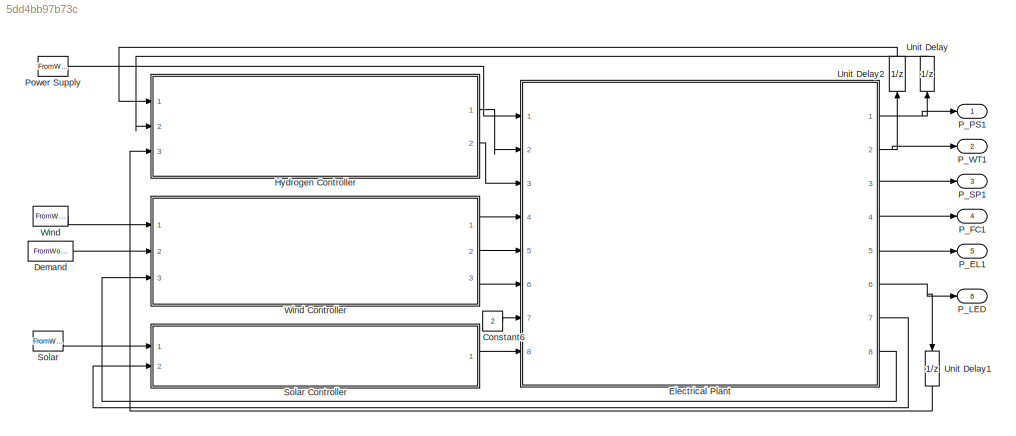
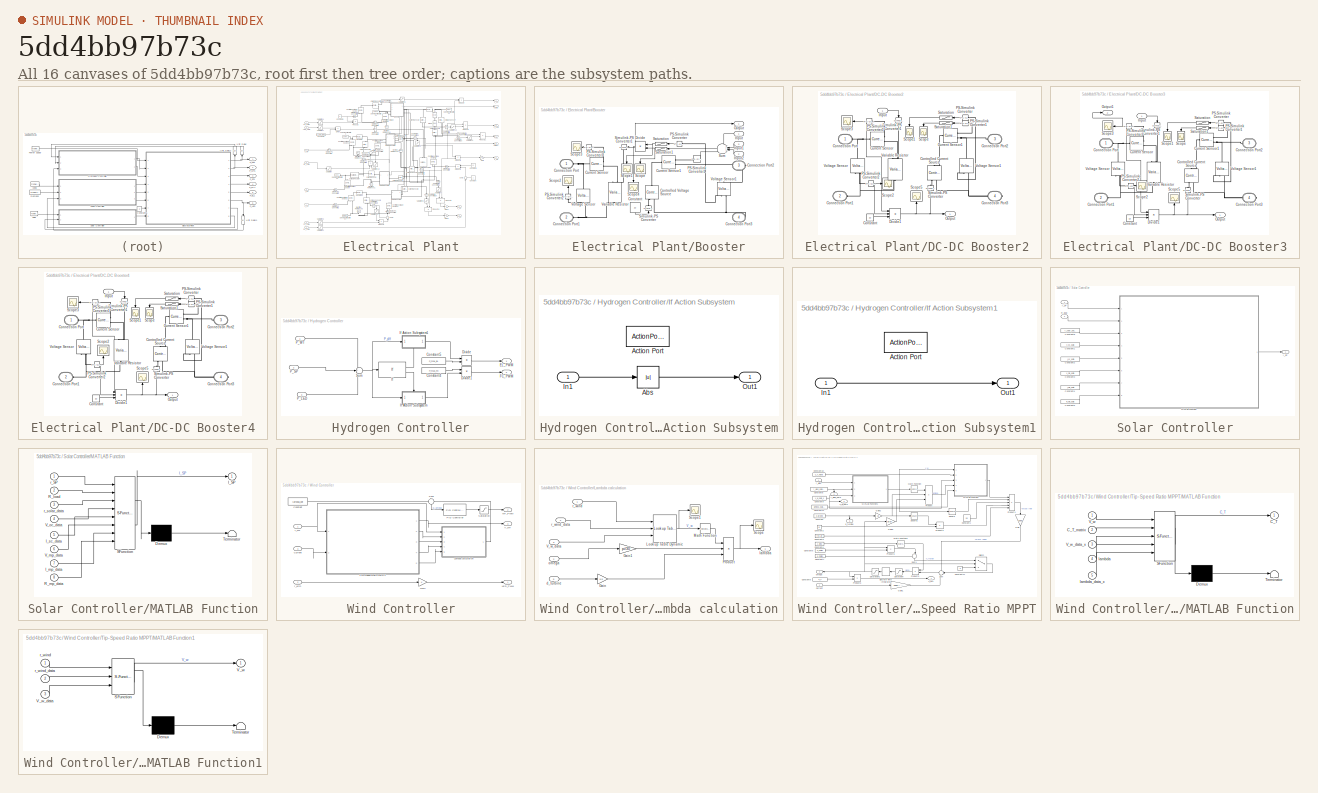
[diagram: thumbnail index - all 16 canvases of the model, root first then tree order]
MODEL slx_5dd4bb97b73c
KIND model
CONFIG AbsTol = auto
CONFIG EnableMultiTasking = off
CONFIG FixedStep = auto
CONFIG MaxStep = 0.0005
CONFIG MinStep = auto
CONFIG RelTol = 1e-3
CONFIG SampleTimeConstraint = Unconstrained
CONFIG Solver = ode23t
CONFIG SolverName = ode23t
CONFIG StartTime = 0.0
CONFIG StopTime = T_sim
BLOCK [Constant] Constant6
  Value = 2
BLOCK [FromWorkspace] Demand
  Interpolate = off
  OutputAfterFinalValue = Holding final value
  SampleTime = T_sim/length(r_LED_x)
  VariableName = r_LED
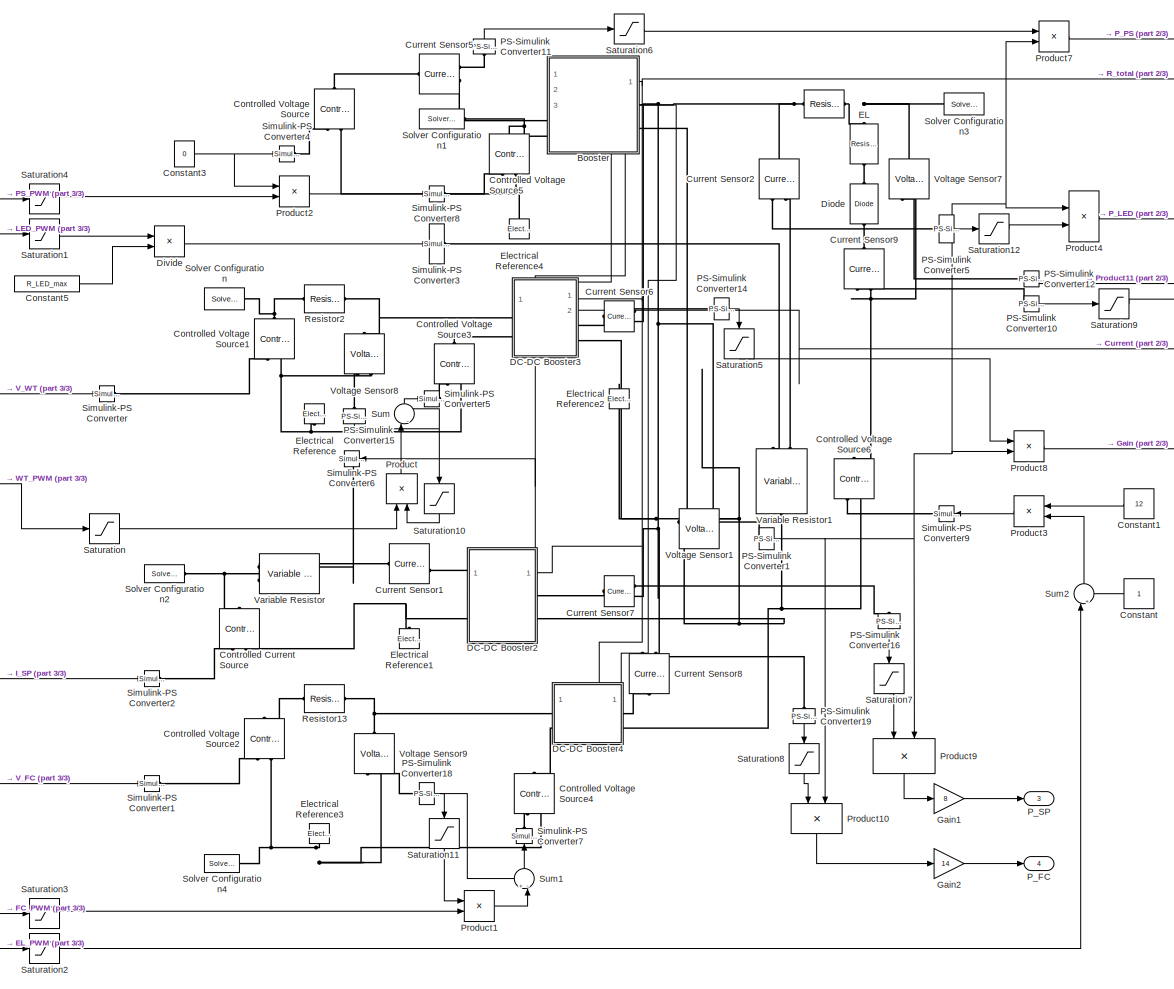
[diagram: Electrical Plant - part 1/3, most of the canvas]
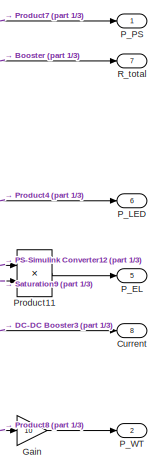
[diagram: Electrical Plant - part 2/3, top right region]
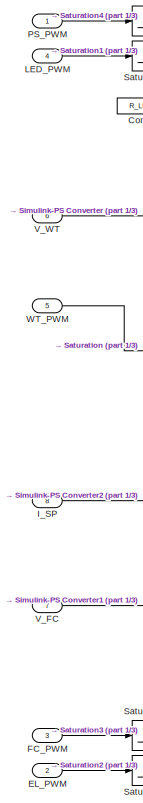
[diagram: Electrical Plant - part 3/3, left side, full height]
BLOCK [SubSystem] Electrical Plant
  Ports = [8, 8]
  RequestExecContextInheritance = off
BLOCK [Reference] Electrical Plant/   REF=fl_lib/Electrical/Electrical Elements/Resistor
  Ports = [0, 0, 0, 0, 0, 1, 1]
  SourceBlock = fl_lib/Electrical/Electrical Elements/Resistor
  SourceProductBaseCode = SS
  SourceType = Resistor
BLOCK [SubSystem] Electrical Plant/Booster
  PortSchema = {"entries":[{"content":{"sides":[{"content":{"connectorIds":["LConn1","LConn2"]},"type":"ConnectorPlacement.EquallySpacedRectSide","uuid":"3f87025d-e72c-4f7c-9c78-5492fcc5bb7b"},{"content":{"connectorIds":["Out1","RConn1","RConn2"],"side":"RIGHT"},"type":"ConnectorPlacement.EquallySpacedRectSide","uuid":"8496db32-d1b8-4ca7-babe-2510a055e486"},{"content":{"connectorIds":[],"side":"TOP"},"type":"Con...<+433ch>
  Ports = [3, 1, 0, 0, 0, 2, 2]
  RequestExecContextInheritance = off
BLOCK [PMIOPort] Electrical Plant/Booster/Connection Port
  Side = Left
  Tag = PMCPort
BLOCK [PMIOPort] Electrical Plant/Booster/Connection Port1
  Port = 2
  Side = Left
  Tag = PMCPort
BLOCK [PMIOPort] Electrical Plant/Booster/Connection Port2
  Port = 3
  Side = Right
  Tag = PMCPort
BLOCK [PMIOPort] Electrical Plant/Booster/Connection Port3
  Port = 4
  Side = Right
  Tag = PMCPort
BLOCK [Constant] Electrical Plant/Booster/Constant
  NameLocation = left
  Value = 12
BLOCK [Reference] Electrical Plant/Booster/Controlled Voltage Source  REF=fl_lib/Electrical/Electrical Sources/Controlled Voltage
Source
  NameLocation = right
  Ports = [0, 0, 0, 0, 0, 1, 2]
  SourceBlock = fl_lib/Electrical/Electrical Sources/Controlled Voltage\nSource
  SourceProductBaseCode = SS
  SourceType = Controlled Voltage\nSource
BLOCK [Reference] Electrical Plant/Booster/Current Sensor  REF=fl_lib/Electrical/Electrical Sensors/Current Sensor
  Ports = [0, 0, 0, 0, 0, 1, 2]
  SourceBlock = fl_lib/Electrical/Electrical Sensors/Current Sensor
  SourceProductBaseCode = SS
  SourceType = Current Sensor
BLOCK [Reference] Electrical Plant/Booster/Current Sensor1  REF=fl_lib/Electrical/Electrical Sensors/Current Sensor
  Ports = [0, 0, 0, 0, 0, 1, 2]
  SourceBlock = fl_lib/Electrical/Electrical Sensors/Current Sensor
  SourceProductBaseCode = SS
  SourceType = Current Sensor
BLOCK [Product] Electrical Plant/Booster/Divide
  Inputs = */
  Ports = [2, 1]
BLOCK [Inport] Electrical Plant/Booster/Input
BLOCK [Inport] Electrical Plant/Booster/Input1
  Port = 3
BLOCK [Inport] Electrical Plant/Booster/Input2
  Port = 2
BLOCK [Outport] Electrical Plant/Booster/Output
BLOCK [Reference] Electrical Plant/Booster/PS-Simulink Converter  REF=nesl_utility/PS-Simulink
Converter
  Ports = [0, 1, 0, 0, 0, 1]
  SourceBlock = nesl_utility/PS-Simulink\nConverter
  SourceProductBaseCode = SS
  SourceType = PS-Simulink\nConverter
BLOCK [Reference] Electrical Plant/Booster/PS-Simulink Converter1  REF=nesl_utility/PS-Simulink
Converter
  Ports = [0, 1, 0, 0, 0, 1]
  SourceBlock = nesl_utility/PS-Simulink\nConverter
  SourceProductBaseCode = SS
  SourceType = PS-Simulink\nConverter
BLOCK [Reference] Electrical Plant/Booster/PS-Simulink Converter2  REF=nesl_utility/PS-Simulink
Converter
  NameLocation = left
  Ports = [0, 1, 0, 0, 0, 1]
  SourceBlock = nesl_utility/PS-Simulink\nConverter
  SourceProductBaseCode = SS
  SourceType = PS-Simulink\nConverter
BLOCK [Reference] Electrical Plant/Booster/PS-Simulink Converter3  REF=nesl_utility/PS-Simulink
Converter
  Ports = [0, 1, 0, 0, 0, 1]
  SourceBlock = nesl_utility/PS-Simulink\nConverter
  SourceProductBaseCode = SS
  SourceType = PS-Simulink\nConverter
BLOCK [Saturate] Electrical Plant/Booster/Saturation
  LowerLimit = 0
  UpperLimit = 13
BLOCK [Saturate] Electrical Plant/Booster/Saturation1
  LowerLimit = 0.01
  UpperLimit = 2
BLOCK [Scope] Electrical Plant/Booster/Scope
  Floating = off
  NameLocation = left
  NumInputPorts = 1
  Ports = [1]
  ScopeSpecificationString = Simulink.scopes.TimeScopeBlockCfg('CurrentConfiguration', extmgr.ConfigurationSet(extmgr.Configuration('Core','General UI',true),extmgr.Configuration('Core','Source UI',true),extmgr.Configuration('Sources','WiredSimulink',true,'DataLoggingVariableName','ScopeData1'),extmgr.Configuration('Visuals','Time Domain',true,'SerializedDisplays',{struct('MinYLimReal','0.3799','MaxYLimReal','0.85627','YLabel...<+1396ch>
BLOCK [Scope] Electrical Plant/Booster/Scope1
  Floating = off
  NameLocation = left
  NumInputPorts = 1
  Ports = [1]
  ScopeSpecificationString = Simulink.scopes.TimeScopeBlockCfg('CurrentConfiguration', extmgr.ConfigurationSet(extmgr.Configuration('Core','General UI',true),extmgr.Configuration('Core','Source UI',true),extmgr.Configuration('Sources','WiredSimulink',true,'DataLoggingVariableName','ScopeData2'),extmgr.Configuration('Visuals','Time Domain',true,'SerializedDisplays',{struct('MinYLimReal','2.00000','MaxYLimReal','22.00000','YLab...<+1404ch>
BLOCK [Scope] Electrical Plant/Booster/Scope2
  Floating = off
  NameLocation = left
  NumInputPorts = 1
  Ports = [1]
  ScopeSpecificationString = Simulink.scopes.TimeScopeBlockCfg('CurrentConfiguration', extmgr.ConfigurationSet(extmgr.Configuration('Core','General UI',true),extmgr.Configuration('Core','Source UI',true),extmgr.Configuration('Sources','WiredSimulink',true,'DataLoggingVariableName','ScopeData3'),extmgr.Configuration('Visuals','Time Domain',true,'SerializedDisplays',{struct('MinYLimReal','72.69692','MaxYLimReal','218.32738','YL...<+1391ch>
BLOCK [Scope] Electrical Plant/Booster/Scope3
  Floating = off
  NumInputPorts = 1
  Ports = [1]
  ScopeSpecificationString = Simulink.scopes.TimeScopeBlockCfg('CurrentConfiguration', extmgr.ConfigurationSet(extmgr.Configuration('Core','General UI',true),extmgr.Configuration('Core','Source UI',true),extmgr.Configuration('Sources','WiredSimulink',true,'DataLoggingVariableName','ScopeData4'),extmgr.Configuration('Visuals','Time Domain',true,'SerializedDisplays',{struct('MinYLimReal','-94026819050944885641864298284086300507...<+2319ch>
BLOCK [Scope] Electrical Plant/Booster/Scope4
  Floating = off
  NameLocation = left
  NumInputPorts = 1
  Ports = [1]
  ScopeSpecificationString = Simulink.scopes.TimeScopeBlockCfg('CurrentConfiguration', extmgr.ConfigurationSet(extmgr.Configuration('Core','General UI',true),extmgr.Configuration('Core','Source UI',true),extmgr.Configuration('Sources','WiredSimulink',true,'DataLoggingVariableName','ScopeData5'),extmgr.Configuration('Visuals','Time Domain',true,'SerializedDisplays',{struct('MinYLimReal','13.18632','MaxYLimReal','29.72149','YLa...<+1700ch>
BLOCK [Reference] Electrical Plant/Booster/Simulink-PS Converter  REF=nesl_utility/Simulink-PS
Converter
  NameLocation = right
  Ports = [1, 0, 0, 0, 0, 0, 1]
  SourceBlock = nesl_utility/Simulink-PS\nConverter
  SourceProductBaseCode = SS
  SourceType = Simulink-PS\nConverter
BLOCK [Reference] Electrical Plant/Booster/Simulink-PS Converter1  REF=nesl_utility/Simulink-PS
Converter
  Ports = [1, 0, 0, 0, 0, 0, 1]
  SourceBlock = nesl_utility/Simulink-PS\nConverter
  SourceProductBaseCode = SS
  SourceType = Simulink-PS\nConverter
BLOCK [Sum] Electrical Plant/Booster/Sum
  Inputs = ++++
  NameLocation = top
  Ports = [4, 1]
BLOCK [Reference] Electrical Plant/Booster/Variable Resistor  REF=fl_lib/Electrical/Electrical Elements/Variable Resistor
  NameLocation = left
  Ports = [0, 0, 0, 0, 0, 2, 1]
  SourceBlock = fl_lib/Electrical/Electrical Elements/Variable Resistor
  SourceProductBaseCode = SS
  SourceType = Variable Resistor
BLOCK [Reference] Electrical Plant/Booster/Voltage Sensor  REF=fl_lib/Electrical/Electrical Sensors/Voltage Sensor
  NameLocation = right
  Ports = [0, 0, 0, 0, 0, 1, 2]
  SourceBlock = fl_lib/Electrical/Electrical Sensors/Voltage Sensor
  SourceProductBaseCode = SS
  SourceType = Voltage Sensor
BLOCK [Reference] Electrical Plant/Booster/Voltage Sensor1  REF=fl_lib/Electrical/Electrical Sensors/Voltage Sensor
  NameLocation = right
  Ports = [0, 0, 0, 0, 0, 1, 2]
  SourceBlock = fl_lib/Electrical/Electrical Sensors/Voltage Sensor
  SourceProductBaseCode = SS
  SourceType = Voltage Sensor
BLOCK [Constant] Electrical Plant/Constant
  NameLocation = top
BLOCK [Constant] Electrical Plant/Constant1
  NameLocation = top
  Value = 12
BLOCK [Constant] Electrical Plant/Constant3
  Value = 0
BLOCK [Constant] Electrical Plant/Constant5
  Value = R_LED_max
BLOCK [Reference] Electrical Plant/Controlled Current Source  REF=fl_lib/Electrical/Electrical Sources/Controlled Current
Source
  NameLocation = right
  Ports = [0, 0, 0, 0, 0, 1, 2]
  SourceBlock = fl_lib/Electrical/Electrical Sources/Controlled Current\nSource
  SourceProductBaseCode = SS
  SourceType = Controlled Current\nSource
BLOCK [Reference] Electrical Plant/Controlled Voltage Source  REF=fl_lib/Electrical/Electrical Sources/Controlled Voltage
Source
  NameLocation = right
  Ports = [0, 0, 0, 0, 0, 1, 2]
  SourceBlock = fl_lib/Electrical/Electrical Sources/Controlled Voltage\nSource
  SourceProductBaseCode = SS
  SourceType = Controlled Voltage\nSource
BLOCK [Reference] Electrical Plant/Controlled Voltage Source1  REF=fl_lib/Electrical/Electrical Sources/Controlled Voltage
Source
  NameLocation = right
  Ports = [0, 0, 0, 0, 0, 1, 2]
  SourceBlock = fl_lib/Electrical/Electrical Sources/Controlled Voltage\nSource
  SourceProductBaseCode = SS
  SourceType = Controlled Voltage\nSource
BLOCK [Reference] Electrical Plant/Controlled Voltage Source2  REF=fl_lib/Electrical/Electrical Sources/Controlled Voltage
Source
  NameLocation = right
  Ports = [0, 0, 0, 0, 0, 1, 2]
  SourceBlock = fl_lib/Electrical/Electrical Sources/Controlled Voltage\nSource
  SourceProductBaseCode = SS
  SourceType = Controlled Voltage\nSource
BLOCK [Reference] Electrical Plant/Controlled Voltage Source3  REF=fl_lib/Electrical/Electrical Sources/Controlled Voltage
Source
  NameLocation = right
  Ports = [0, 0, 0, 0, 0, 1, 2]
  SourceBlock = fl_lib/Electrical/Electrical Sources/Controlled Voltage\nSource
  SourceProductBaseCode = SS
  SourceType = Controlled Voltage\nSource
BLOCK [Reference] Electrical Plant/Controlled Voltage Source4  REF=fl_lib/Electrical/Electrical Sources/Controlled Voltage
Source
  NameLocation = right
  Ports = [0, 0, 0, 0, 0, 1, 2]
  SourceBlock = fl_lib/Electrical/Electrical Sources/Controlled Voltage\nSource
  SourceProductBaseCode = SS
  SourceType = Controlled Voltage\nSource
BLOCK [Reference] Electrical Plant/Controlled Voltage Source5  REF=fl_lib/Electrical/Electrical Sources/Controlled Voltage
Source
  NameLocation = right
  Ports = [0, 0, 0, 0, 0, 1, 2]
  SourceBlock = fl_lib/Electrical/Electrical Sources/Controlled Voltage\nSource
  SourceProductBaseCode = SS
  SourceType = Controlled Voltage\nSource
BLOCK [Reference] Electrical Plant/Controlled Voltage Source6  REF=fl_lib/Electrical/Electrical Sources/Controlled Voltage
Source
  NameLocation = right
  Ports = [0, 0, 0, 0, 0, 1, 2]
  SourceBlock = fl_lib/Electrical/Electrical Sources/Controlled Voltage\nSource
  SourceProductBaseCode = SS
  SourceType = Controlled Voltage\nSource
BLOCK [Outport] Electrical Plant/Current
  Port = 8
BLOCK [Reference] Electrical Plant/Current Sensor1  REF=fl_lib/Electrical/Electrical Sensors/Current Sensor
  Ports = [0, 0, 0, 0, 0, 1, 2]
  SourceBlock = fl_lib/Electrical/Electrical Sensors/Current Sensor
  SourceProductBaseCode = SS
  SourceType = Current Sensor
BLOCK [Reference] Electrical Plant/Current Sensor2  REF=fl_lib/Electrical/Electrical Sensors/Current Sensor
  NameLocation = left
  Ports = [0, 0, 0, 0, 0, 1, 2]
  SourceBlock = fl_lib/Electrical/Electrical Sensors/Current Sensor
  SourceProductBaseCode = SS
  SourceType = Current Sensor
BLOCK [Reference] Electrical Plant/Current Sensor5  REF=fl_lib/Electrical/Electrical Sensors/Current Sensor
  Ports = [0, 0, 0, 0, 0, 1, 2]
  SourceBlock = fl_lib/Electrical/Electrical Sensors/Current Sensor
  SourceProductBaseCode = SS
  SourceType = Current Sensor
BLOCK [Reference] Electrical Plant/Current Sensor6  REF=fl_lib/Electrical/Electrical Sensors/Current Sensor
  Ports = [0, 0, 0, 0, 0, 1, 2]
  SourceBlock = fl_lib/Electrical/Electrical Sensors/Current Sensor
  SourceProductBaseCode = SS
  SourceType = Current Sensor
BLOCK [Reference] Electrical Plant/Current Sensor7  REF=fl_lib/Electrical/Electrical Sensors/Current Sensor
  Ports = [0, 0, 0, 0, 0, 1, 2]
  SourceBlock = fl_lib/Electrical/Electrical Sensors/Current Sensor
  SourceProductBaseCode = SS
  SourceType = Current Sensor
BLOCK [Reference] Electrical Plant/Current Sensor8  REF=fl_lib/Electrical/Electrical Sensors/Current Sensor
  NameLocation = right
  Ports = [0, 0, 0, 0, 0, 1, 2]
  SourceBlock = fl_lib/Electrical/Electrical Sensors/Current Sensor
  SourceProductBaseCode = SS
  SourceType = Current Sensor
BLOCK [Reference] Electrical Plant/Current Sensor9  REF=fl_lib/Electrical/Electrical Sensors/Current Sensor
  NameLocation = left
  Ports = [0, 0, 0, 0, 0, 1, 2]
  SourceBlock = fl_lib/Electrical/Electrical Sensors/Current Sensor
  SourceProductBaseCode = SS
  SourceType = Current Sensor
BLOCK [SubSystem] Electrical Plant/DC-DC Booster2
  PortSchema = {"entries":[{"content":{"sides":[{"content":{"connectorIds":["LConn1","LConn2"]},"type":"ConnectorPlacement.EquallySpacedRectSide","uuid":"e779e15f-05fe-47ae-aa08-5379ba170b98"},{"content":{"connectorIds":["In1","RConn1","RConn2"],"side":"RIGHT"},"type":"ConnectorPlacement.EquallySpacedRectSide","uuid":"c806a98b-8847-4c98-ba30-df3a6a47e20e"},{"content":{"connectorIds":["Out1"],"side":"TOP"},"type"...<+277ch>
  Ports = [1, 1, 0, 0, 0, 2, 2]
  RequestExecContextInheritance = off
BLOCK [PMIOPort] Electrical Plant/DC-DC Booster2/Connection Port
  Side = Left
  Tag = PMCPort
BLOCK [PMIOPort] Electrical Plant/DC-DC Booster2/Connection Port1
  Port = 2
  Side = Left
  Tag = PMCPort
BLOCK [PMIOPort] Electrical Plant/DC-DC Booster2/Connection Port2
  Port = 3
  Side = Right
  Tag = PMCPort
BLOCK [PMIOPort] Electrical Plant/DC-DC Booster2/Connection Port3
  Port = 4
  Side = Right
  Tag = PMCPort
BLOCK [Constant] Electrical Plant/DC-DC Booster2/Constant
  Value = 12
BLOCK [Reference] Electrical Plant/DC-DC Booster2/Controlled Current Source  REF=fl_lib/Electrical/Electrical Sources/Controlled Current
Source
  NameLocation = right
  Ports = [0, 0, 0, 0, 0, 1, 2]
  SourceBlock = fl_lib/Electrical/Electrical Sources/Controlled Current\nSource
  SourceProductBaseCode = SS
  SourceType = Controlled Current\nSource
BLOCK [Reference] Electrical Plant/DC-DC Booster2/Current Sensor  REF=fl_lib/Electrical/Electrical Sensors/Current Sensor
  Ports = [0, 0, 0, 0, 0, 1, 2]
  SourceBlock = fl_lib/Electrical/Electrical Sensors/Current Sensor
  SourceProductBaseCode = SS
  SourceType = Current Sensor
BLOCK [Reference] Electrical Plant/DC-DC Booster2/Current Sensor1  REF=fl_lib/Electrical/Electrical Sensors/Current Sensor
  Ports = [0, 0, 0, 0, 0, 1, 2]
  SourceBlock = fl_lib/Electrical/Electrical Sensors/Current Sensor
  SourceProductBaseCode = SS
  SourceType = Current Sensor
BLOCK [Product] Electrical Plant/DC-DC Booster2/Divide1
  Inputs = **/
  Ports = [3, 1]
BLOCK [Inport] Electrical Plant/DC-DC Booster2/Input
BLOCK [Outport] Electrical Plant/DC-DC Booster2/Output
BLOCK [Reference] Electrical Plant/DC-DC Booster2/PS-Simulink Converter  REF=nesl_utility/PS-Simulink
Converter
  Ports = [0, 1, 0, 0, 0, 1]
  SourceBlock = nesl_utility/PS-Simulink\nConverter
  SourceProductBaseCode = SS
  SourceType = PS-Simulink\nConverter
BLOCK [Reference] Electrical Plant/DC-DC Booster2/PS-Simulink Converter1  REF=nesl_utility/PS-Simulink
Converter
  Ports = [0, 1, 0, 0, 0, 1]
  SourceBlock = nesl_utility/PS-Simulink\nConverter
  SourceProductBaseCode = SS
  SourceType = PS-Simulink\nConverter
BLOCK [Reference] Electrical Plant/DC-DC Booster2/PS-Simulink Converter2  REF=nesl_utility/PS-Simulink
Converter
  Ports = [0, 1, 0, 0, 0, 1]
  SourceBlock = nesl_utility/PS-Simulink\nConverter
  SourceProductBaseCode = SS
  SourceType = PS-Simulink\nConverter
BLOCK [Reference] Electrical Plant/DC-DC Booster2/PS-Simulink Converter3  REF=nesl_utility/PS-Simulink
Converter
  Ports = [0, 1, 0, 0, 0, 1]
  SourceBlock = nesl_utility/PS-Simulink\nConverter
  SourceProductBaseCode = SS
  SourceType = PS-Simulink\nConverter
BLOCK [Saturate] Electrical Plant/DC-DC Booster2/Saturation
  LowerLimit = 0
  UpperLimit = 13
BLOCK [Saturate] Electrical Plant/DC-DC Booster2/Saturation1
  LowerLimit = 0
  UpperLimit = 2
BLOCK [Scope] Electrical Plant/DC-DC Booster2/Scope
  Floating = off
  NameLocation = left
  NumInputPorts = 1
  Ports = [1]
  ScopeSpecificationString = Simulink.scopes.TimeScopeBlockCfg('CurrentConfiguration', extmgr.ConfigurationSet(extmgr.Configuration('Core','General UI',true),extmgr.Configuration('Core','Source UI',true),extmgr.Configuration('Sources','WiredSimulink',true,'DataLoggingVariableName','ScopeData1'),extmgr.Configuration('Visuals','Time Domain',true,'SerializedDisplays',{struct('MinYLimReal','-0.00012','MaxYLimReal','0.0011','YLabe...<+1366ch>
BLOCK [Scope] Electrical Plant/DC-DC Booster2/Scope1
  Floating = off
  NameLocation = left
  NumInputPorts = 1
  Ports = [1]
  ScopeSpecificationString = Simulink.scopes.TimeScopeBlockCfg('CurrentConfiguration', extmgr.ConfigurationSet(extmgr.Configuration('Core','General UI',true),extmgr.Configuration('Core','Source UI',true),extmgr.Configuration('Sources','WiredSimulink',true,'DataLoggingVariableName','ScopeData2'),extmgr.Configuration('Visuals','Time Domain',true,'SerializedDisplays',{struct('MinYLimReal','2.00000','MaxYLimReal','22.00000','YLab...<+1400ch>  <repeated x3 — deduplicated; at blocks: Scope1>
BLOCK [Scope] Electrical Plant/DC-DC Booster2/Scope2
  Floating = off
  NumInputPorts = 1
  Ports = [1]
  ScopeSpecificationString = Simulink.scopes.TimeScopeBlockCfg('CurrentConfiguration', extmgr.ConfigurationSet(extmgr.Configuration('Core','General UI',true),extmgr.Configuration('Core','Source UI',true),extmgr.Configuration('Sources','WiredSimulink',true,'DataLoggingVariableName','ScopeData3'),extmgr.Configuration('Visuals','Time Domain',true,'SerializedDisplays',{struct('MinYLimReal','-0.07095','MaxYLimReal','0.63854','YLab...<+1381ch>
BLOCK [Scope] Electrical Plant/DC-DC Booster2/Scope3
  Floating = off
  NumInputPorts = 1
  Ports = [1]
  ScopeSpecificationString = Simulink.scopes.TimeScopeBlockCfg('CurrentConfiguration', extmgr.ConfigurationSet(extmgr.Configuration('Core','General UI',true),extmgr.Configuration('Core','Source UI',true),extmgr.Configuration('Sources','WiredSimulink',true,'DataLoggingVariableName','ScopeData4'),extmgr.Configuration('Visuals','Time Domain',true,'SerializedDisplays',{struct('MinYLimReal','-0.00258','MaxYLimReal','0.0232','YLabe...<+1377ch>
BLOCK [Scope] Electrical Plant/DC-DC Booster2/Scope5
  Floating = off
  NameLocation = right
  NumInputPorts = 1
  Ports = [1]
  ScopeSpecificationString = Simulink.scopes.TimeScopeBlockCfg('CurrentConfiguration', extmgr.ConfigurationSet(extmgr.Configuration('Core','General UI',true),extmgr.Configuration('Core','Source UI',true),extmgr.Configuration('Sources','WiredSimulink',true,'DataLoggingVariableName','ScopeData2'),extmgr.Configuration('Visuals','Time Domain',true,'SerializedDisplays',{struct('MinYLimReal','-0.00012','MaxYLimReal','0.0011','YLabe...<+1362ch>
BLOCK [Reference] Electrical Plant/DC-DC Booster2/Simulink-PS Converter  REF=nesl_utility/Simulink-PS
Converter
  NameLocation = right
  Ports = [1, 0, 0, 0, 0, 0, 1]
  SourceBlock = nesl_utility/Simulink-PS\nConverter
  SourceProductBaseCode = SS
  SourceType = Simulink-PS\nConverter
BLOCK [Reference] Electrical Plant/DC-DC Booster2/Simulink-PS Converter1  REF=nesl_utility/Simulink-PS
Converter
  NameLocation = right
  Ports = [1, 0, 0, 0, 0, 0, 1]
  SourceBlock = nesl_utility/Simulink-PS\nConverter
  SourceProductBaseCode = SS
  SourceType = Simulink-PS\nConverter
BLOCK [Reference] Electrical Plant/DC-DC Booster2/Variable Resistor  REF=fl_lib/Electrical/Electrical Elements/Variable Resistor
  NameLocation = left
  Ports = [0, 0, 0, 0, 0, 2, 1]
  SourceBlock = fl_lib/Electrical/Electrical Elements/Variable Resistor
  SourceProductBaseCode = SS
  SourceType = Variable Resistor
BLOCK [Reference] Electrical Plant/DC-DC Booster2/Voltage Sensor  REF=fl_lib/Electrical/Electrical Sensors/Voltage Sensor
  NameLocation = right
  Ports = [0, 0, 0, 0, 0, 1, 2]
  SourceBlock = fl_lib/Electrical/Electrical Sensors/Voltage Sensor
  SourceProductBaseCode = SS
  SourceType = Voltage Sensor
BLOCK [Reference] Electrical Plant/DC-DC Booster2/Voltage Sensor1  REF=fl_lib/Electrical/Electrical Sensors/Voltage Sensor
  NameLocation = right
  Ports = [0, 0, 0, 0, 0, 1, 2]
  SourceBlock = fl_lib/Electrical/Electrical Sensors/Voltage Sensor
  SourceProductBaseCode = SS
  SourceType = Voltage Sensor
BLOCK [SubSystem] Electrical Plant/DC-DC Booster3
  PortSchema = {"entries":[{"content":{"sides":[{"content":{"connectorIds":["LConn1","LConn2"]},"type":"ConnectorPlacement.EquallySpacedRectSide","uuid":"e779e15f-05fe-47ae-aa08-5379ba170b98"},{"content":{"connectorIds":["In1","RConn1","RConn2"],"side":"RIGHT"},"type":"ConnectorPlacement.EquallySpacedRectSide","uuid":"c806a98b-8847-4c98-ba30-df3a6a47e20e"},{"content":{"connectorIds":["Out1","Out2"],"side":"TOP"}...<+284ch>
  Ports = [1, 2, 0, 0, 0, 2, 2]
  RequestExecContextInheritance = off
BLOCK [PMIOPort] Electrical Plant/DC-DC Booster3/Connection Port
  Side = Left
  Tag = PMCPort
BLOCK [PMIOPort] Electrical Plant/DC-DC Booster3/Connection Port1
  Port = 2
  Side = Left
  Tag = PMCPort
BLOCK [PMIOPort] Electrical Plant/DC-DC Booster3/Connection Port2
  Port = 3
  Side = Right
  Tag = PMCPort
BLOCK [PMIOPort] Electrical Plant/DC-DC Booster3/Connection Port3
  Port = 4
  Side = Right
  Tag = PMCPort
BLOCK [Constant] Electrical Plant/DC-DC Booster3/Constant
  Value = 12
BLOCK [Reference] Electrical Plant/DC-DC Booster3/Controlled Current Source  REF=fl_lib/Electrical/Electrical Sources/Controlled Current
Source
  NameLocation = right
  Ports = [0, 0, 0, 0, 0, 1, 2]
  SourceBlock = fl_lib/Electrical/Electrical Sources/Controlled Current\nSource
  SourceProductBaseCode = SS
  SourceType = Controlled Current\nSource
BLOCK [Reference] Electrical Plant/DC-DC Booster3/Current Sensor  REF=fl_lib/Electrical/Electrical Sensors/Current Sensor
  Ports = [0, 0, 0, 0, 0, 1, 2]
  SourceBlock = fl_lib/Electrical/Electrical Sensors/Current Sensor
  SourceProductBaseCode = SS
  SourceType = Current Sensor
BLOCK [Reference] Electrical Plant/DC-DC Booster3/Current Sensor1  REF=fl_lib/Electrical/Electrical Sensors/Current Sensor
  Ports = [0, 0, 0, 0, 0, 1, 2]
  SourceBlock = fl_lib/Electrical/Electrical Sensors/Current Sensor
  SourceProductBaseCode = SS
  SourceType = Current Sensor
BLOCK [Product] Electrical Plant/DC-DC Booster3/Divide1
  Inputs = **/
  Ports = [3, 1]
BLOCK [Inport] Electrical Plant/DC-DC Booster3/Input
BLOCK [Outport] Electrical Plant/DC-DC Booster3/Output
BLOCK [Outport] Electrical Plant/DC-DC Booster3/Output1
  Port = 2
BLOCK [Reference] Electrical Plant/DC-DC Booster3/PS-Simulink Converter  REF=nesl_utility/PS-Simulink
Converter
  Ports = [0, 1, 0, 0, 0, 1]
  SourceBlock = nesl_utility/PS-Simulink\nConverter
  SourceProductBaseCode = SS
  SourceType = PS-Simulink\nConverter
BLOCK [Reference] Electrical Plant/DC-DC Booster3/PS-Simulink Converter1  REF=nesl_utility/PS-Simulink
Converter
  Ports = [0, 1, 0, 0, 0, 1]
  SourceBlock = nesl_utility/PS-Simulink\nConverter
  SourceProductBaseCode = SS
  SourceType = PS-Simulink\nConverter
BLOCK [Reference] Electrical Plant/DC-DC Booster3/PS-Simulink Converter2  REF=nesl_utility/PS-Simulink
Converter
  Ports = [0, 1, 0, 0, 0, 1]
  SourceBlock = nesl_utility/PS-Simulink\nConverter
  SourceProductBaseCode = SS
  SourceType = PS-Simulink\nConverter
BLOCK [Reference] Electrical Plant/DC-DC Booster3/PS-Simulink Converter3  REF=nesl_utility/PS-Simulink
Converter
  Ports = [0, 1, 0, 0, 0, 1]
  SourceBlock = nesl_utility/PS-Simulink\nConverter
  SourceProductBaseCode = SS
  SourceType = PS-Simulink\nConverter
BLOCK [Saturate] Electrical Plant/DC-DC Booster3/Saturation
  LowerLimit = 0
  UpperLimit = 13
BLOCK [Saturate] Electrical Plant/DC-DC Booster3/Saturation1
  LowerLimit = 0
  UpperLimit = 2
BLOCK [Scope] Electrical Plant/DC-DC Booster3/Scope
  Floating = off
  NameLocation = left
  NumInputPorts = 1
  Ports = [1]
  ScopeSpecificationString = Simulink.scopes.TimeScopeBlockCfg('CurrentConfiguration', extmgr.ConfigurationSet(extmgr.Configuration('Core','General UI',true),extmgr.Configuration('Core','Source UI',true),extmgr.Configuration('Sources','WiredSimulink',true,'DataLoggingVariableName','ScopeData1'),extmgr.Configuration('Visuals','Time Domain',true,'SerializedDisplays',{struct('MinYLimReal','0.29013','MaxYLimReal','2.18999','YLabe...<+1368ch>
BLOCK [Scope] Electrical Plant/DC-DC Booster3/Scope1
  Floating = off
  NameLocation = left
  NumInputPorts = 1
  Ports = [1]
BLOCK [Scope] Electrical Plant/DC-DC Booster3/Scope2
  Floating = off
  NumInputPorts = 1
  Ports = [1]
  ScopeSpecificationString = Simulink.scopes.TimeScopeBlockCfg('CurrentConfiguration', extmgr.ConfigurationSet(extmgr.Configuration('Core','General UI',true),extmgr.Configuration('Core','Source UI',true),extmgr.Configuration('Sources','WiredSimulink',true,'DataLoggingVariableName','ScopeData3'),extmgr.Configuration('Visuals','Time Domain',true,'SerializedDisplays',{struct('MinYLimReal','-0.60293','MaxYLimReal','5.42638','YLab...<+1436ch>
BLOCK [Scope] Electrical Plant/DC-DC Booster3/Scope3
  Floating = off
  NumInputPorts = 1
  Ports = [1]
  ScopeSpecificationString = Simulink.scopes.TimeScopeBlockCfg('CurrentConfiguration', extmgr.ConfigurationSet(extmgr.Configuration('Core','General UI',true),extmgr.Configuration('Core','Source UI',true),extmgr.Configuration('Sources','WiredSimulink',true,'DataLoggingVariableName','ScopeData4'),extmgr.Configuration('Visuals','Time Domain',true,'SerializedDisplays',{struct('MinYLimReal','-0.03666','MaxYLimReal','0.33859','YLab...<+1381ch>
BLOCK [Scope] Electrical Plant/DC-DC Booster3/Scope5
  Floating = off
  NameLocation = right
  NumInputPorts = 1
  Ports = [1]
  ScopeSpecificationString = Simulink.scopes.TimeScopeBlockCfg('CurrentConfiguration', extmgr.ConfigurationSet(extmgr.Configuration('Core','General UI',true),extmgr.Configuration('Core','Source UI',true),extmgr.Configuration('Sources','WiredSimulink',true,'DataLoggingVariableName','ScopeData2'),extmgr.Configuration('Visuals','Time Domain',true,'SerializedDisplays',{struct('MinYLimReal','-0.00719','MaxYLimReal','0.06475','YLab...<+1366ch>
BLOCK [Reference] Electrical Plant/DC-DC Booster3/Simulink-PS Converter  REF=nesl_utility/Simulink-PS
Converter
  NameLocation = right
  Ports = [1, 0, 0, 0, 0, 0, 1]
  SourceBlock = nesl_utility/Simulink-PS\nConverter
  SourceProductBaseCode = SS
  SourceType = Simulink-PS\nConverter
BLOCK [Reference] Electrical Plant/DC-DC Booster3/Simulink-PS Converter1  REF=nesl_utility/Simulink-PS
Converter
  NameLocation = right
  Ports = [1, 0, 0, 0, 0, 0, 1]
  SourceBlock = nesl_utility/Simulink-PS\nConverter
  SourceProductBaseCode = SS
  SourceType = Simulink-PS\nConverter
BLOCK [Reference] Electrical Plant/DC-DC Booster3/Variable Resistor  REF=fl_lib/Electrical/Electrical Elements/Variable Resistor
  NameLocation = left
  Ports = [0, 0, 0, 0, 0, 2, 1]
  SourceBlock = fl_lib/Electrical/Electrical Elements/Variable Resistor
  SourceProductBaseCode = SS
  SourceType = Variable Resistor
BLOCK [Reference] Electrical Plant/DC-DC Booster3/Voltage Sensor  REF=fl_lib/Electrical/Electrical Sensors/Voltage Sensor
  NameLocation = right
  Ports = [0, 0, 0, 0, 0, 1, 2]
  SourceBlock = fl_lib/Electrical/Electrical Sensors/Voltage Sensor
  SourceProductBaseCode = SS
  SourceType = Voltage Sensor
BLOCK [Reference] Electrical Plant/DC-DC Booster3/Voltage Sensor1  REF=fl_lib/Electrical/Electrical Sensors/Voltage Sensor
  NameLocation = right
  Ports = [0, 0, 0, 0, 0, 1, 2]
  SourceBlock = fl_lib/Electrical/Electrical Sensors/Voltage Sensor
  SourceProductBaseCode = SS
  SourceType = Voltage Sensor
BLOCK [SubSystem] Electrical Plant/DC-DC Booster4
  PortSchema = {"entries":[{"content":{"sides":[{"content":{"connectorIds":["LConn1","LConn2"]},"type":"ConnectorPlacement.EquallySpacedRectSide","uuid":"53e27ef1-b6e4-4838-a313-2833a9f48f28"},{"content":{"connectorIds":["RConn1","RConn2"],"side":"RIGHT"},"type":"ConnectorPlacement.EquallySpacedRectSide","uuid":"d6eb4206-926e-4a9e-8f3b-898e00b2f09a"},{"content":{"connectorIds":["Out1","In1"],"side":"TOP"},"type"...<+277ch>
  Ports = [1, 1, 0, 0, 0, 2, 2]
  RequestExecContextInheritance = off
BLOCK [PMIOPort] Electrical Plant/DC-DC Booster4/Connection Port
  Side = Left
  Tag = PMCPort
BLOCK [PMIOPort] Electrical Plant/DC-DC Booster4/Connection Port1
  Port = 2
  Side = Left
  Tag = PMCPort
BLOCK [PMIOPort] Electrical Plant/DC-DC Booster4/Connection Port2
  Port = 3
  Side = Right
  Tag = PMCPort
BLOCK [PMIOPort] Electrical Plant/DC-DC Booster4/Connection Port3
  Port = 4
  Side = Right
  Tag = PMCPort
BLOCK [Constant] Electrical Plant/DC-DC Booster4/Constant
  Value = 12
BLOCK [Reference] Electrical Plant/DC-DC Booster4/Controlled Current Source  REF=fl_lib/Electrical/Electrical Sources/Controlled Current
Source
  NameLocation = right
  Ports = [0, 0, 0, 0, 0, 1, 2]
  SourceBlock = fl_lib/Electrical/Electrical Sources/Controlled Current\nSource
  SourceProductBaseCode = SS
  SourceType = Controlled Current\nSource
BLOCK [Reference] Electrical Plant/DC-DC Booster4/Current Sensor  REF=fl_lib/Electrical/Electrical Sensors/Current Sensor
  Ports = [0, 0, 0, 0, 0, 1, 2]
  SourceBlock = fl_lib/Electrical/Electrical Sensors/Current Sensor
  SourceProductBaseCode = SS
  SourceType = Current Sensor
BLOCK [Reference] Electrical Plant/DC-DC Booster4/Current Sensor1  REF=fl_lib/Electrical/Electrical Sensors/Current Sensor
  Ports = [0, 0, 0, 0, 0, 1, 2]
  SourceBlock = fl_lib/Electrical/Electrical Sensors/Current Sensor
  SourceProductBaseCode = SS
  SourceType = Current Sensor
BLOCK [Product] Electrical Plant/DC-DC Booster4/Divide1
  Inputs = **/
  Ports = [3, 1]
BLOCK [Inport] Electrical Plant/DC-DC Booster4/Input
BLOCK [Outport] Electrical Plant/DC-DC Booster4/Output
BLOCK [Reference] Electrical Plant/DC-DC Booster4/PS-Simulink Converter  REF=nesl_utility/PS-Simulink
Converter
  Ports = [0, 1, 0, 0, 0, 1]
  SourceBlock = nesl_utility/PS-Simulink\nConverter
  SourceProductBaseCode = SS
  SourceType = PS-Simulink\nConverter
BLOCK [Reference] Electrical Plant/DC-DC Booster4/PS-Simulink Converter1  REF=nesl_utility/PS-Simulink
Converter
  Ports = [0, 1, 0, 0, 0, 1]
  SourceBlock = nesl_utility/PS-Simulink\nConverter
  SourceProductBaseCode = SS
  SourceType = PS-Simulink\nConverter
BLOCK [Reference] Electrical Plant/DC-DC Booster4/PS-Simulink Converter2  REF=nesl_utility/PS-Simulink
Converter
  Ports = [0, 1, 0, 0, 0, 1]
  SourceBlock = nesl_utility/PS-Simulink\nConverter
  SourceProductBaseCode = SS
  SourceType = PS-Simulink\nConverter
BLOCK [Reference] Electrical Plant/DC-DC Booster4/PS-Simulink Converter3  REF=nesl_utility/PS-Simulink
Converter
  Ports = [0, 1, 0, 0, 0, 1]
  SourceBlock = nesl_utility/PS-Simulink\nConverter
  SourceProductBaseCode = SS
  SourceType = PS-Simulink\nConverter
BLOCK [Saturate] Electrical Plant/DC-DC Booster4/Saturation
  LowerLimit = 0
  UpperLimit = 13
BLOCK [Saturate] Electrical Plant/DC-DC Booster4/Saturation1
  LowerLimit = 0
  UpperLimit = 2
BLOCK [Scope] Electrical Plant/DC-DC Booster4/Scope
  Floating = off
  NameLocation = left
  NumInputPorts = 1
  Ports = [1]
  ScopeSpecificationString = Simulink.scopes.TimeScopeBlockCfg('CurrentConfiguration', extmgr.ConfigurationSet(extmgr.Configuration('Core','General UI',true),extmgr.Configuration('Core','Source UI',true),extmgr.Configuration('Sources','WiredSimulink',true,'DataLoggingVariableName','ScopeData1'),extmgr.Configuration('Visuals','Time Domain',true,'SerializedDisplays',{struct('MinYLimReal','0.29013','MaxYLimReal','2.18999','YLabe...<+1368ch>
BLOCK [Scope] Electrical Plant/DC-DC Booster4/Scope1
  Floating = off
  NameLocation = left
  NumInputPorts = 1
  Ports = [1]
BLOCK [Scope] Electrical Plant/DC-DC Booster4/Scope2
  Floating = off
  NameLocation = right
  NumInputPorts = 1
  Ports = [1]
  ScopeSpecificationString = Simulink.scopes.TimeScopeBlockCfg('CurrentConfiguration', extmgr.ConfigurationSet(extmgr.Configuration('Core','General UI',true),extmgr.Configuration('Core','Source UI',true),extmgr.Configuration('Sources','WiredSimulink',true,'DataLoggingVariableName','ScopeData3'),extmgr.Configuration('Visuals','Time Domain',true,'SerializedDisplays',{struct('MinYLimReal','-0.06663','MaxYLimReal','0.56696','YLab...<+1381ch>
BLOCK [Scope] Electrical Plant/DC-DC Booster4/Scope3
  Floating = off
  NumInputPorts = 1
  Ports = [1]
  ScopeSpecificationString = Simulink.scopes.TimeScopeBlockCfg('CurrentConfiguration', extmgr.ConfigurationSet(extmgr.Configuration('Core','General UI',true),extmgr.Configuration('Core','Source UI',true),extmgr.Configuration('Sources','WiredSimulink',true,'DataLoggingVariableName','ScopeData4'),extmgr.Configuration('Visuals','Time Domain',true,'SerializedDisplays',{struct('MinYLimReal','-0.00453','MaxYLimReal','0.03529','YLab...<+1680ch>
BLOCK [Scope] Electrical Plant/DC-DC Booster4/Scope5
  Floating = off
  NameLocation = right
  NumInputPorts = 1
  Ports = [1]
  ScopeSpecificationString = Simulink.scopes.TimeScopeBlockCfg('CurrentConfiguration', extmgr.ConfigurationSet(extmgr.Configuration('Core','General UI',true),extmgr.Configuration('Core','Source UI',true),extmgr.Configuration('Sources','WiredSimulink',true,'DataLoggingVariableName','ScopeData2'),extmgr.Configuration('Visuals','Time Domain',true),extmgr.Configuration('Tools','Plot Navigation',true),extmgr.Configuration('Tools',...<+40ch>
BLOCK [Reference] Electrical Plant/DC-DC Booster4/Simulink-PS Converter  REF=nesl_utility/Simulink-PS
Converter
  NameLocation = right
  Ports = [1, 0, 0, 0, 0, 0, 1]
  SourceBlock = nesl_utility/Simulink-PS\nConverter
  SourceProductBaseCode = SS
  SourceType = Simulink-PS\nConverter
BLOCK [Reference] Electrical Plant/DC-DC Booster4/Simulink-PS Converter1  REF=nesl_utility/Simulink-PS
Converter
  NameLocation = right
  Ports = [1, 0, 0, 0, 0, 0, 1]
  SourceBlock = nesl_utility/Simulink-PS\nConverter
  SourceProductBaseCode = SS
  SourceType = Simulink-PS\nConverter
BLOCK [Reference] Electrical Plant/DC-DC Booster4/Variable Resistor  REF=fl_lib/Electrical/Electrical Elements/Variable Resistor
  NameLocation = left
  Ports = [0, 0, 0, 0, 0, 2, 1]
  SourceBlock = fl_lib/Electrical/Electrical Elements/Variable Resistor
  SourceProductBaseCode = SS
  SourceType = Variable Resistor
BLOCK [Reference] Electrical Plant/DC-DC Booster4/Voltage Sensor  REF=fl_lib/Electrical/Electrical Sensors/Voltage Sensor
  NameLocation = right
  Ports = [0, 0, 0, 0, 0, 1, 2]
  SourceBlock = fl_lib/Electrical/Electrical Sensors/Voltage Sensor
  SourceProductBaseCode = SS
  SourceType = Voltage Sensor
BLOCK [Reference] Electrical Plant/DC-DC Booster4/Voltage Sensor1  REF=fl_lib/Electrical/Electrical Sensors/Voltage Sensor
  NameLocation = right
  Ports = [0, 0, 0, 0, 0, 1, 2]
  SourceBlock = fl_lib/Electrical/Electrical Sensors/Voltage Sensor
  SourceProductBaseCode = SS
  SourceType = Voltage Sensor
BLOCK [Reference] Electrical Plant/Diode  REF=ee_lib/Semiconductors &
Converters/Diode
  NameLocation = right
  Ports = [0, 0, 0, 0, 0, 1, 1]
  SourceBlock = ee_lib/Semiconductors &\nConverters/Diode
  SourceProductBaseCode = PS
  SourceType = Diode
BLOCK [Product] Electrical Plant/Divide
  Inputs = /*
  Ports = [2, 1]
BLOCK [Reference] Electrical Plant/EL  REF=fl_lib/Electrical/Electrical Elements/Resistor
  NameLocation = right
  Ports = [0, 0, 0, 0, 0, 1, 1]
  SourceBlock = fl_lib/Electrical/Electrical Elements/Resistor
  SourceProductBaseCode = SS
  SourceType = Resistor
BLOCK [Inport] Electrical Plant/EL_PWM
  Port = 2
BLOCK [Reference] Electrical Plant/Electrical Reference  REF=fl_lib/Electrical/Electrical Elements/Electrical Reference
  NameLocation = left
  Ports = [0, 0, 0, 0, 0, 1]
  SourceBlock = fl_lib/Electrical/Electrical Elements/Electrical Reference
  SourceProductBaseCode = SS
  SourceType = Electrical Reference
BLOCK [Reference] Electrical Plant/Electrical Reference1  REF=fl_lib/Electrical/Electrical Elements/Electrical Reference
  NameLocation = right
  Ports = [0, 0, 0, 0, 0, 1]
  SourceBlock = fl_lib/Electrical/Electrical Elements/Electrical Reference
  SourceProductBaseCode = SS
  SourceType = Electrical Reference
BLOCK [Reference] Electrical Plant/Electrical Reference2  REF=fl_lib/Electrical/Electrical Elements/Electrical Reference
  NameLocation = right
  Ports = [0, 0, 0, 0, 0, 1]
  SourceBlock = fl_lib/Electrical/Electrical Elements/Electrical Reference
  SourceProductBaseCode = SS
  SourceType = Electrical Reference
BLOCK [Reference] Electrical Plant/Electrical Reference3  REF=fl_lib/Electrical/Electrical Elements/Electrical Reference
  NameLocation = left
  Ports = [0, 0, 0, 0, 0, 1]
  SourceBlock = fl_lib/Electrical/Electrical Elements/Electrical Reference
  SourceProductBaseCode = SS
  SourceType = Electrical Reference
BLOCK [Reference] Electrical Plant/Electrical Reference4  REF=fl_lib/Electrical/Electrical Elements/Electrical Reference
  NameLocation = right
  Ports = [0, 0, 0, 0, 0, 1]
  SourceBlock = fl_lib/Electrical/Electrical Elements/Electrical Reference
  SourceProductBaseCode = SS
  SourceType = Electrical Reference
BLOCK [Inport] Electrical Plant/FC_PWM
  Port = 3
BLOCK [Gain] Electrical Plant/Gain
  Gain = 10
BLOCK [Gain] Electrical Plant/Gain1
  Gain = 8
BLOCK [Gain] Electrical Plant/Gain2
  Gain = 14
BLOCK [Inport] Electrical Plant/I_SP
  Port = 8
BLOCK [Inport] Electrical Plant/LED_PWM
  Port = 4
BLOCK [Reference] Electrical Plant/PS-Simulink Converter1  REF=nesl_utility/PS-Simulink
Converter
  Ports = [0, 1, 0, 0, 0, 1]
  SourceBlock = nesl_utility/PS-Simulink\nConverter
  SourceProductBaseCode = SS
  SourceType = PS-Simulink\nConverter
BLOCK [Reference] Electrical Plant/PS-Simulink Converter10  REF=nesl_utility/PS-Simulink
Converter
  Ports = [0, 1, 0, 0, 0, 1]
  SourceBlock = nesl_utility/PS-Simulink\nConverter
  SourceProductBaseCode = SS
  SourceType = PS-Simulink\nConverter
BLOCK [Reference] Electrical Plant/PS-Simulink Converter11  REF=nesl_utility/PS-Simulink
Converter
  NameLocation = right
  Ports = [0, 1, 0, 0, 0, 1]
  SourceBlock = nesl_utility/PS-Simulink\nConverter
  SourceProductBaseCode = SS
  SourceType = PS-Simulink\nConverter
BLOCK [Reference] Electrical Plant/PS-Simulink Converter12  REF=nesl_utility/PS-Simulink
Converter
  Ports = [0, 1, 0, 0, 0, 1]
  SourceBlock = nesl_utility/PS-Simulink\nConverter
  SourceProductBaseCode = SS
  SourceType = PS-Simulink\nConverter
BLOCK [Reference] Electrical Plant/PS-Simulink Converter14  REF=nesl_utility/PS-Simulink
Converter
  Ports = [0, 1, 0, 0, 0, 1]
  SourceBlock = nesl_utility/PS-Simulink\nConverter
  SourceProductBaseCode = SS
  SourceType = PS-Simulink\nConverter
BLOCK [Reference] Electrical Plant/PS-Simulink Converter15  REF=nesl_utility/PS-Simulink
Converter
  NameLocation = left
  Ports = [0, 1, 0, 0, 0, 1]
  SourceBlock = nesl_utility/PS-Simulink\nConverter
  SourceProductBaseCode = SS
  SourceType = PS-Simulink\nConverter
BLOCK [Reference] Electrical Plant/PS-Simulink Converter16  REF=nesl_utility/PS-Simulink
Converter
  NameLocation = left
  Ports = [0, 1, 0, 0, 0, 1]
  SourceBlock = nesl_utility/PS-Simulink\nConverter
  SourceProductBaseCode = SS
  SourceType = PS-Simulink\nConverter
BLOCK [Reference] Electrical Plant/PS-Simulink Converter18  REF=nesl_utility/PS-Simulink
Converter
  Ports = [0, 1, 0, 0, 0, 1]
  SourceBlock = nesl_utility/PS-Simulink\nConverter
  SourceProductBaseCode = SS
  SourceType = PS-Simulink\nConverter
BLOCK [Reference] Electrical Plant/PS-Simulink Converter19  REF=nesl_utility/PS-Simulink
Converter
  NameLocation = left
  Ports = [0, 1, 0, 0, 0, 1]
  SourceBlock = nesl_utility/PS-Simulink\nConverter
  SourceProductBaseCode = SS
  SourceType = PS-Simulink\nConverter
BLOCK [Reference] Electrical Plant/PS-Simulink Converter5  REF=nesl_utility/PS-Simulink
Converter
  Ports = [0, 1, 0, 0, 0, 1]
  SourceBlock = nesl_utility/PS-Simulink\nConverter
  SourceProductBaseCode = SS
  SourceType = PS-Simulink\nConverter
BLOCK [Inport] Electrical Plant/PS_PWM
BLOCK [Outport] Electrical Plant/P_EL
  Port = 5
BLOCK [Outport] Electrical Plant/P_FC
  Port = 4
BLOCK [Outport] Electrical Plant/P_LED
  Port = 6
BLOCK [Outport] Electrical Plant/P_PS
BLOCK [Outport] Electrical Plant/P_SP
  Port = 3
BLOCK [Outport] Electrical Plant/P_WT
  Port = 2
BLOCK [Product] Electrical Plant/Product
  NameLocation = right
  Ports = [2, 1]
BLOCK [Product] Electrical Plant/Product1
  Ports = [2, 1]
BLOCK [Product] Electrical Plant/Product10
  NameLocation = left
  Ports = [2, 1]
BLOCK [Product] Electrical Plant/Product11
  Ports = [2, 1]
BLOCK [Product] Electrical Plant/Product2
  Ports = [2, 1]
BLOCK [Product] Electrical Plant/Product3
  NameLocation = top
  Ports = [2, 1]
BLOCK [Product] Electrical Plant/Product4
  Ports = [2, 1]
BLOCK [Product] Electrical Plant/Product7
  Ports = [2, 1]
BLOCK [Product] Electrical Plant/Product8
  Ports = [2, 1]
BLOCK [Product] Electrical Plant/Product9
  NameLocation = left
  Ports = [2, 1]
BLOCK [Outport] Electrical Plant/R_total
  Port = 7
BLOCK [Reference] Electrical Plant/Resistor13  REF=fl_lib/Electrical/Electrical Elements/Resistor
  Ports = [0, 0, 0, 0, 0, 1, 1]
  SourceBlock = fl_lib/Electrical/Electrical Elements/Resistor
  SourceProductBaseCode = SS
  SourceType = Resistor
BLOCK [Reference] Electrical Plant/Resistor2  REF=fl_lib/Electrical/Electrical Elements/Resistor
  Ports = [0, 0, 0, 0, 0, 1, 1]
  SourceBlock = fl_lib/Electrical/Electrical Elements/Resistor
  SourceProductBaseCode = SS
  SourceType = Resistor
BLOCK [Saturate] Electrical Plant/Saturation
  LowerLimit = 0.01
  UpperLimit = 1
BLOCK [Saturate] Electrical Plant/Saturation1
  LowerLimit = 0.01
  UpperLimit = 1
BLOCK [Saturate] Electrical Plant/Saturation10
  LowerLimit = 0.01
  NameLocation = left
  UpperLimit = 12
BLOCK [Saturate] Electrical Plant/Saturation11
  LowerLimit = 0.01
  NameLocation = left
  UpperLimit = 12
BLOCK [Saturate] Electrical Plant/Saturation12
  LowerLimit = 0
  UpperLimit = 2
BLOCK [Saturate] Electrical Plant/Saturation2
  LowerLimit = 0
  UpperLimit = 1
BLOCK [Saturate] Electrical Plant/Saturation3
  LowerLimit = 0
  UpperLimit = 1
BLOCK [Saturate] Electrical Plant/Saturation4
  LowerLimit = 0
  UpperLimit = 1
BLOCK [Saturate] Electrical Plant/Saturation5
  NameLocation = left
  UpperLimit = 2
BLOCK [Saturate] Electrical Plant/Saturation6
  UpperLimit = 2
BLOCK [Saturate] Electrical Plant/Saturation7
  LowerLimit = 0
  NameLocation = left
  UpperLimit = 1
BLOCK [Saturate] Electrical Plant/Saturation8
  NameLocation = left
BLOCK [Saturate] Electrical Plant/Saturation9
  LowerLimit = 0
  UpperLimit = 2
  ZeroCross = off
BLOCK [Reference] Electrical Plant/Simulink-PS Converter  REF=nesl_utility/Simulink-PS
Converter
  Ports = [1, 0, 0, 0, 0, 0, 1]
  SourceBlock = nesl_utility/Simulink-PS\nConverter
  SourceProductBaseCode = SS
  SourceType = Simulink-PS\nConverter
BLOCK [Reference] Electrical Plant/Simulink-PS Converter1  REF=nesl_utility/Simulink-PS
Converter
  Ports = [1, 0, 0, 0, 0, 0, 1]
  SourceBlock = nesl_utility/Simulink-PS\nConverter
  SourceProductBaseCode = SS
  SourceType = Simulink-PS\nConverter
BLOCK [Reference] Electrical Plant/Simulink-PS Converter2  REF=nesl_utility/Simulink-PS
Converter
  Ports = [1, 0, 0, 0, 0, 0, 1]
  SourceBlock = nesl_utility/Simulink-PS\nConverter
  SourceProductBaseCode = SS
  SourceType = Simulink-PS\nConverter
BLOCK [Reference] Electrical Plant/Simulink-PS Converter3  REF=nesl_utility/Simulink-PS
Converter
  Ports = [1, 0, 0, 0, 0, 0, 1]
  SourceBlock = nesl_utility/Simulink-PS\nConverter
  SourceProductBaseCode = SS
  SourceType = Simulink-PS\nConverter
BLOCK [Reference] Electrical Plant/Simulink-PS Converter4  REF=nesl_utility/Simulink-PS
Converter
  Ports = [1, 0, 0, 0, 0, 0, 1]
  SourceBlock = nesl_utility/Simulink-PS\nConverter
  SourceProductBaseCode = SS
  SourceType = Simulink-PS\nConverter
BLOCK [Reference] Electrical Plant/Simulink-PS Converter5  REF=nesl_utility/Simulink-PS
Converter
  Ports = [1, 0, 0, 0, 0, 0, 1]
  SourceBlock = nesl_utility/Simulink-PS\nConverter
  SourceProductBaseCode = SS
  SourceType = Simulink-PS\nConverter
BLOCK [Reference] Electrical Plant/Simulink-PS Converter6  REF=nesl_utility/Simulink-PS
Converter
  NameLocation = top
  Ports = [1, 0, 0, 0, 0, 0, 1]
  SourceBlock = nesl_utility/Simulink-PS\nConverter
  SourceProductBaseCode = SS
  SourceType = Simulink-PS\nConverter
BLOCK [Reference] Electrical Plant/Simulink-PS Converter7  REF=nesl_utility/Simulink-PS
Converter
  NameLocation = left
  Ports = [1, 0, 0, 0, 0, 0, 1]
  SourceBlock = nesl_utility/Simulink-PS\nConverter
  SourceProductBaseCode = SS
  SourceType = Simulink-PS\nConverter
BLOCK [Reference] Electrical Plant/Simulink-PS Converter8  REF=nesl_utility/Simulink-PS
Converter
  Ports = [1, 0, 0, 0, 0, 0, 1]
  SourceBlock = nesl_utility/Simulink-PS\nConverter
  SourceProductBaseCode = SS
  SourceType = Simulink-PS\nConverter
BLOCK [Reference] Electrical Plant/Simulink-PS Converter9  REF=nesl_utility/Simulink-PS
Converter
  NameLocation = top
  Ports = [1, 0, 0, 0, 0, 0, 1]
  SourceBlock = nesl_utility/Simulink-PS\nConverter
  SourceProductBaseCode = SS
  SourceType = Simulink-PS\nConverter
BLOCK [Reference] Electrical Plant/Solver Configuration  REF=nesl_utility/Solver
Configuration
  Ports = [0, 0, 0, 0, 0, 0, 1]
  SourceBlock = nesl_utility/Solver\nConfiguration
  SourceProductBaseCode = SS
  SourceType = Solver\nConfiguration
BLOCK [Reference] Electrical Plant/Solver Configuration1  REF=nesl_utility/Solver
Configuration
  NameLocation = top
  Ports = [0, 0, 0, 0, 0, 0, 1]
  SourceBlock = nesl_utility/Solver\nConfiguration
  SourceProductBaseCode = SS
  SourceType = Solver\nConfiguration
BLOCK [Reference] Electrical Plant/Solver Configuration2  REF=nesl_utility/Solver
Configuration
  Ports = [0, 0, 0, 0, 0, 0, 1]
  SourceBlock = nesl_utility/Solver\nConfiguration
  SourceProductBaseCode = SS
  SourceType = Solver\nConfiguration
BLOCK [Reference] Electrical Plant/Solver Configuration3  REF=nesl_utility/Solver
Configuration
  NameLocation = top
  Ports = [0, 0, 0, 0, 0, 0, 1]
  SourceBlock = nesl_utility/Solver\nConfiguration
  SourceProductBaseCode = SS
  SourceType = Solver\nConfiguration
BLOCK [Reference] Electrical Plant/Solver Configuration4  REF=nesl_utility/Solver
Configuration
  Ports = [0, 0, 0, 0, 0, 0, 1]
  SourceBlock = nesl_utility/Solver\nConfiguration
  SourceProductBaseCode = SS
  SourceType = Solver\nConfiguration
BLOCK [Sum] Electrical Plant/Sum
  Inputs = |-+
  NameLocation = right
  Ports = [2, 1]
BLOCK [Sum] Electrical Plant/Sum1
  Inputs = +-|
  NameLocation = left
  Ports = [2, 1]
BLOCK [Sum] Electrical Plant/Sum2
  Inputs = |+-
  NameLocation = right
  Ports = [2, 1]
BLOCK [Inport] Electrical Plant/V_FC
  Port = 7
BLOCK [Inport] Electrical Plant/V_WT
  Port = 6
BLOCK [Reference] Electrical Plant/Variable Resistor  REF=fl_lib/Electrical/Electrical Elements/Variable Resistor
  NameLocation = top
  Ports = [0, 0, 0, 0, 0, 2, 1]
  SourceBlock = fl_lib/Electrical/Electrical Elements/Variable Resistor
  SourceProductBaseCode = SS
  SourceType = Variable Resistor
BLOCK [Reference] Electrical Plant/Variable Resistor1  REF=fl_lib/Electrical/Electrical Elements/Variable Resistor
  NameLocation = left
  Ports = [0, 0, 0, 0, 0, 2, 1]
  SourceBlock = fl_lib/Electrical/Electrical Elements/Variable Resistor
  SourceProductBaseCode = SS
  SourceType = Variable Resistor
BLOCK [Reference] Electrical Plant/Voltage Sensor1  REF=fl_lib/Electrical/Electrical Sensors/Voltage Sensor
  NameLocation = top
  Ports = [0, 0, 0, 0, 0, 1, 2]
  SourceBlock = fl_lib/Electrical/Electrical Sensors/Voltage Sensor
  SourceProductBaseCode = SS
  SourceType = Voltage Sensor
BLOCK [Reference] Electrical Plant/Voltage Sensor7  REF=fl_lib/Electrical/Electrical Sensors/Voltage Sensor
  NameLocation = right
  Ports = [0, 0, 0, 0, 0, 1, 2]
  SourceBlock = fl_lib/Electrical/Electrical Sensors/Voltage Sensor
  SourceProductBaseCode = SS
  SourceType = Voltage Sensor
BLOCK [Reference] Electrical Plant/Voltage Sensor8  REF=fl_lib/Electrical/Electrical Sensors/Voltage Sensor
  NameLocation = right
  Ports = [0, 0, 0, 0, 0, 1, 2]
  SourceBlock = fl_lib/Electrical/Electrical Sensors/Voltage Sensor
  SourceProductBaseCode = SS
  SourceType = Voltage Sensor
BLOCK [Reference] Electrical Plant/Voltage Sensor9  REF=fl_lib/Electrical/Electrical Sensors/Voltage Sensor
  NameLocation = right
  Ports = [0, 0, 0, 0, 0, 1, 2]
  SourceBlock = fl_lib/Electrical/Electrical Sensors/Voltage Sensor
  SourceProductBaseCode = SS
  SourceType = Voltage Sensor
BLOCK [Inport] Electrical Plant/WT_PWM
  Port = 5
BLOCK [SubSystem] Hydrogen Controller
  Ports = [3, 2]
  RequestExecContextInheritance = off
BLOCK [Constant] Hydrogen Controller/Constant4
  Value = P_max_FC
BLOCK [Constant] Hydrogen Controller/Constant5
  Value = P_max_EL
BLOCK [Product] Hydrogen Controller/Divide
  Inputs = */
  Ports = [2, 1]
BLOCK [Product] Hydrogen Controller/Divide1
  Inputs = /*
  NameLocation = top
  Ports = [2, 1]
BLOCK [Outport] Hydrogen Controller/EL_PWM
BLOCK [Outport] Hydrogen Controller/FC_PWM
  Port = 2
BLOCK [If] Hydrogen Controller/If
  Ports = [1, 2]
BLOCK [SubSystem] Hydrogen Controller/If Action Subsystem
  Ports = [1, 1, 0, 0, 0, 0, 0, 1]
  RequestExecContextInheritance = off
  TreatAsAtomicUnit = on
BLOCK [Abs] Hydrogen Controller/If Action Subsystem/Abs
  SaturateOnIntegerOverflow = off
BLOCK [ActionPort] Hydrogen Controller/If Action Subsystem/Action Port
  ActionPortLabel = else
BLOCK [Inport] Hydrogen Controller/If Action Subsystem/In1
BLOCK [Outport] Hydrogen Controller/If Action Subsystem/Out1
BLOCK [SubSystem] Hydrogen Controller/If Action Subsystem1
  NameLocation = top
  Ports = [1, 1, 0, 0, 0, 0, 0, 1]
  RequestExecContextInheritance = off
  TreatAsAtomicUnit = on
BLOCK [ActionPort] Hydrogen Controller/If Action Subsystem1/Action Port
  ActionPortLabel = if(u1 > 0)
BLOCK [Inport] Hydrogen Controller/If Action Subsystem1/In1
BLOCK [Outport] Hydrogen Controller/If Action Subsystem1/Out1
BLOCK [Inport] Hydrogen Controller/P_LED
  Port = 3
BLOCK [Inport] Hydrogen Controller/P_SP
  Port = 2
BLOCK [Inport] Hydrogen Controller/P_WT
BLOCK [Sum] Hydrogen Controller/Sum
  Inputs = ++-
  Ports = [3, 1]
BLOCK [Outport] P_EL1
  Port = 5
BLOCK [Outport] P_FC1
  Port = 4
BLOCK [Outport] P_LED
  Port = 6
BLOCK [Outport] P_PS1
BLOCK [Outport] P_SP1
  Port = 3
BLOCK [Outport] P_WT1
  Port = 2
BLOCK [FromWorkspace] Power Supply
  Interpolate = off
  OutputAfterFinalValue = Holding final value
  SampleTime = T_sim/length(r_PS_x)
  VariableName = r_PS
BLOCK [FromWorkspace] Solar
  Interpolate = off
  OutputAfterFinalValue = Holding final value
  SampleTime = T_sim/length(r_SP_x)
  VariableName = r_SP
BLOCK [SubSystem] Solar Controller
  Ports = [2, 1]
  RequestExecContextInheritance = off
BLOCK [Constant] Solar Controller/Constant1
  Value = V_oc_data
BLOCK [Constant] Solar Controller/Constant2
  Value = I_sc_data
BLOCK [Constant] Solar Controller/Constant3
  Value = V_mp_data
BLOCK [Constant] Solar Controller/Constant4
  Value = I_mp_data
BLOCK [Constant] Solar Controller/Constant5
  Value = R_mp_data
BLOCK [Constant] Solar Controller/Constant8
  Value = r_solar_data_x
BLOCK [Outport] Solar Controller/I_SP
BLOCK [SubSystem] Solar Controller/MATLAB Function
  ErrorFcn = Stateflow.Translate.translate
  PermitHierarchicalResolution = ExplicitOnly
  Ports = [8, 1]
  RequestExecContextInheritance = off
  SFBlockType = MATLAB Function
  TreatAsAtomicUnit = on
BLOCK [Demux] Solar Controller/MATLAB Function/ Demux 
  Outputs = 1
  Ports = [1, 1]
BLOCK [S-Function] Solar Controller/MATLAB Function/ SFunction 
  EnableBusSupport = on
  FunctionName = sf_sfun
  PortCounts = [8 2]
  Ports = [8, 2]
  SFcnIsStateOwnerBlock = off
  SFunctionDeploymentMode = off
  Tag = Stateflow S-Function 3
BLOCK [Terminator] Solar Controller/MATLAB Function/ Terminator 
BLOCK [Outport] Solar Controller/MATLAB Function/I_SP
BLOCK [Inport] Solar Controller/MATLAB Function/I_mp_data
  Port = 7
BLOCK [Inport] Solar Controller/MATLAB Function/I_sc_data
  Port = 5
BLOCK [Inport] Solar Controller/MATLAB Function/R_load
  Port = 2
BLOCK [Inport] Solar Controller/MATLAB Function/R_mp_data
  Port = 8
BLOCK [Inport] Solar Controller/MATLAB Function/V_mp_data
  Port = 6
BLOCK [Inport] Solar Controller/MATLAB Function/V_oc_data
  Port = 4
BLOCK [Inport] Solar Controller/MATLAB Function/r_SP
BLOCK [Inport] Solar Controller/MATLAB Function/r_solar_data
  Port = 3
BLOCK [Inport] Solar Controller/R_load
  Port = 2
BLOCK [Inport] Solar Controller/r_SP
BLOCK [UnitDelay] Unit Delay
  HasFrameUpgradeWarning = on
  NameLocation = right
  SampleTime = -1
BLOCK [UnitDelay] Unit Delay1
  HasFrameUpgradeWarning = on
  NameLocation = left
  SampleTime = -1
BLOCK [UnitDelay] Unit Delay2
  HasFrameUpgradeWarning = on
  NameLocation = right
  SampleTime = -1
BLOCK [FromWorkspace] Wind
  Interpolate = off
  OutputAfterFinalValue = Holding final value
  SampleTime = T_sim/length(r_WT_x)
  VariableName = r_WT
BLOCK [SubSystem] Wind Controller
  Ports = [3, 3]
  RequestExecContextInheritance = off
BLOCK [Constant] Wind Controller/Constant
  Value = lambda_opt
BLOCK [Inport] Wind Controller/Current
  Port = 3
BLOCK [Gain] Wind Controller/Gain
BLOCK [Outport] Wind Controller/LED_PWM
BLOCK [SubSystem] Wind Controller/Lambda calculation
  Ports = [5, 1]
  RequestExecContextInheritance = off
BLOCK [Gain] Wind Controller/Lambda calculation/Gain
  Gain = 0.5
BLOCK [Gain] Wind Controller/Lambda calculation/Gain1
  Gain = pi/30
BLOCK [Reference] Wind Controller/Lambda calculation/Lookup Table Dynamic  REF=simulink/Lookup
Tables/Lookup
Table
Dynamic
  Ports = [3, 1]
  SourceBlock = simulink/Lookup\nTables/Lookup\nTable\nDynamic
  SourceProductBaseCode = SL
  SourceType = Lookup Table Dynamic
BLOCK [Math] Wind Controller/Lambda calculation/Math Function
  Operator = reciprocal
  Ports = [1, 1]
  SignedPower = on
BLOCK [Product] Wind Controller/Lambda calculation/Product
  Inputs = 3
  Ports = [3, 1]
BLOCK [Scope] Wind Controller/Lambda calculation/Scope
  Floating = off
  NumInputPorts = 1
  Ports = [1]
  ScopeSpecificationString = Simulink.scopes.TimeScopeBlockCfg('CurrentConfiguration', extmgr.ConfigurationSet(extmgr.Configuration('Core','General UI',true),extmgr.Configuration('Core','Source UI',true),extmgr.Configuration('Sources','WiredSimulink',true,'DataLoggingVariableName','ScopeData13'),extmgr.Configuration('Visuals','Time Domain',true,'SerializedDisplays',{struct('MinYLimReal','0.88813','MaxYLimReal','3.84046','YLab...<+1424ch>
BLOCK [Scope] Wind Controller/Lambda calculation/Scope1
  Floating = off
  NumInputPorts = 1
  Ports = [1]
  ScopeSpecificationString = Simulink.scopes.TimeScopeBlockCfg('CurrentConfiguration', extmgr.ConfigurationSet(extmgr.Configuration('Core','General UI',true),extmgr.Configuration('Core','Source UI',true),extmgr.Configuration('Sources','WiredSimulink',true,'DataLoggingVariableName','ScopeData14'),extmgr.Configuration('Visuals','Time Domain',true,'SerializedDisplays',{struct('MinYLimReal','1.99819','MaxYLimReal','5.72131','YLab...<+1361ch>
BLOCK [Inport] Wind Controller/Lambda calculation/V_w_data
  Port = 3
BLOCK [Inport] Wind Controller/Lambda calculation/d_turbine
  Port = 5
BLOCK [Outport] Wind Controller/Lambda calculation/lambda
BLOCK [Inport] Wind Controller/Lambda calculation/omega
  Port = 2
BLOCK [Inport] Wind Controller/Lambda calculation/r_wind
BLOCK [Inport] Wind Controller/Lambda calculation/r_wind_data
  Port = 4
BLOCK [Reference] Wind Controller/PID Controller  REF=simulink/Continuous/PID Controller
  Ports = [1, 1]
  SourceBlock = simulink/Continuous/PID Controller
  SourceProductBaseCode = SL
  SourceType = PID 1dof
BLOCK [Saturate] Wind Controller/Saturation
  LowerLimit = 0
  UpperLimit = 1
BLOCK [Sum] Wind Controller/Sum
  Inputs = -+
  NameLocation = left
  Ports = [2, 1]
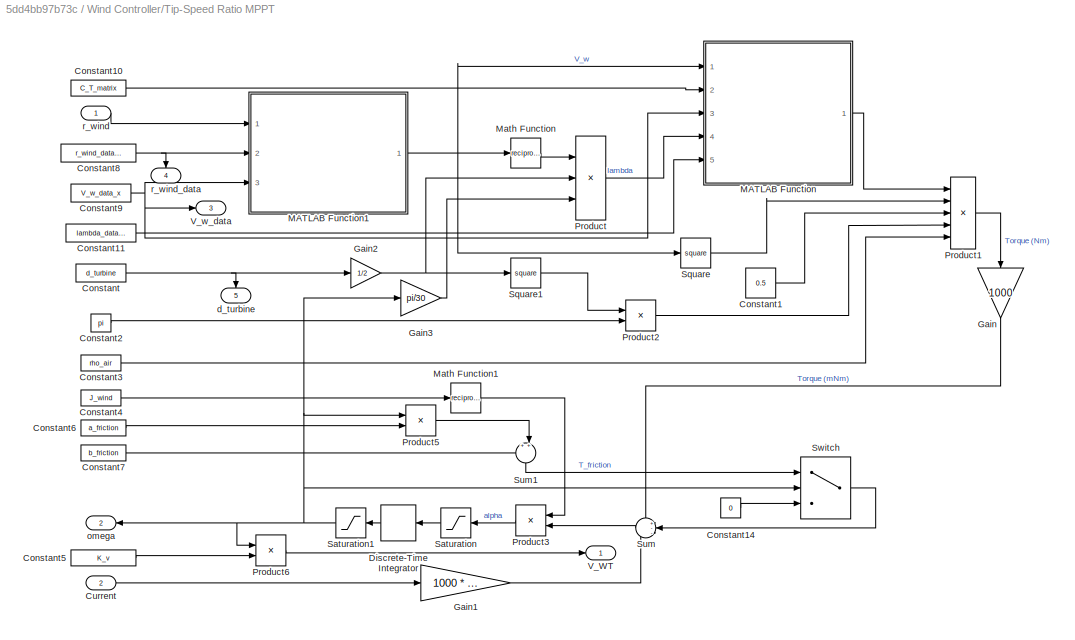
BLOCK [SubSystem] Wind Controller/Tip-Speed Ratio MPPT
  Ports = [2, 5]
  RequestExecContextInheritance = off
BLOCK [Constant] Wind Controller/Tip-Speed Ratio MPPT/Constant
  Value = d_turbine
BLOCK [Constant] Wind Controller/Tip-Speed Ratio MPPT/Constant1
  Value = 0.5
BLOCK [Constant] Wind Controller/Tip-Speed Ratio MPPT/Constant10
  Value = C_T_matrix
BLOCK [Constant] Wind Controller/Tip-Speed Ratio MPPT/Constant11
  Value = lambda_data_x
BLOCK [Constant] Wind Controller/Tip-Speed Ratio MPPT/Constant14
  Value = 0
BLOCK [Constant] Wind Controller/Tip-Speed Ratio MPPT/Constant2
  Value = pi
BLOCK [Constant] Wind Controller/Tip-Speed Ratio MPPT/Constant3
  Value = rho_air
BLOCK [Constant] Wind Controller/Tip-Speed Ratio MPPT/Constant4
  SampleTime = step_size
  Value = J_wind
BLOCK [Constant] Wind Controller/Tip-Speed Ratio MPPT/Constant5
  Value = K_v
BLOCK [Constant] Wind Controller/Tip-Speed Ratio MPPT/Constant6
  Value = a_friction
BLOCK [Constant] Wind Controller/Tip-Speed Ratio MPPT/Constant7
  SampleTime = step_size
  Value = b_friction
BLOCK [Constant] Wind Controller/Tip-Speed Ratio MPPT/Constant8
  Value = r_wind_data_x
BLOCK [Constant] Wind Controller/Tip-Speed Ratio MPPT/Constant9
  Value = V_w_data_x
BLOCK [Inport] Wind Controller/Tip-Speed Ratio MPPT/Current
  Port = 2
BLOCK [DiscreteIntegrator] Wind Controller/Tip-Speed Ratio MPPT/Discrete-Time Integrator
  ICPrevOutput = DiscIntNeverNeededParam
  ICPrevScaledInput = DiscIntNeverNeededParam
  InitialCondition = omega_0
  InitialConditionSetting = Auto
  Ports = [1, 1]
  SampleTime = -1
BLOCK [Gain] Wind Controller/Tip-Speed Ratio MPPT/Gain
  Gain = 1000
  NameLocation = left
BLOCK [Gain] Wind Controller/Tip-Speed Ratio MPPT/Gain1
  Gain = 1000 * K_t
  NameLocation = top
BLOCK [Gain] Wind Controller/Tip-Speed Ratio MPPT/Gain2
  Gain = 1/2
BLOCK [Gain] Wind Controller/Tip-Speed Ratio MPPT/Gain3
  Gain = pi/30
BLOCK [SubSystem] Wind Controller/Tip-Speed Ratio MPPT/MATLAB Function
  ErrorFcn = Stateflow.Translate.translate
  PermitHierarchicalResolution = ExplicitOnly
  Ports = [5, 1]
  RequestExecContextInheritance = off
  SFBlockType = MATLAB Function
  TreatAsAtomicUnit = on
BLOCK [Demux] Wind Controller/Tip-Speed Ratio MPPT/MATLAB Function/ Demux 
  Outputs = 1
  Ports = [1, 1]
BLOCK [S-Function] Wind Controller/Tip-Speed Ratio MPPT/MATLAB Function/ SFunction 
  EnableBusSupport = on
  FunctionName = sf_sfun
  PortCounts = [5 2]
  Ports = [5, 2]
  SFcnIsStateOwnerBlock = off
  SFunctionDeploymentMode = off
  Tag = Stateflow S-Function 2
BLOCK [Terminator] Wind Controller/Tip-Speed Ratio MPPT/MATLAB Function/ Terminator 
BLOCK [Outport] Wind Controller/Tip-Speed Ratio MPPT/MATLAB Function/C_T
BLOCK [Inport] Wind Controller/Tip-Speed Ratio MPPT/MATLAB Function/C_T_matrix
  Port = 2
BLOCK [Inport] Wind Controller/Tip-Speed Ratio MPPT/MATLAB Function/V_w
BLOCK [Inport] Wind Controller/Tip-Speed Ratio MPPT/MATLAB Function/V_w_data_x
  Port = 3
BLOCK [Inport] Wind Controller/Tip-Speed Ratio MPPT/MATLAB Function/lambda
  Port = 4
BLOCK [Inport] Wind Controller/Tip-Speed Ratio MPPT/MATLAB Function/lambda_data_x
  Port = 5
BLOCK [SubSystem] Wind Controller/Tip-Speed Ratio MPPT/MATLAB Function1
  ErrorFcn = Stateflow.Translate.translate
  PermitHierarchicalResolution = ExplicitOnly
  Ports = [3, 1]
  RequestExecContextInheritance = off
  SFBlockType = MATLAB Function
  TreatAsAtomicUnit = on
BLOCK [Demux] Wind Controller/Tip-Speed Ratio MPPT/MATLAB Function1/ Demux 
  Outputs = 1
  Ports = [1, 1]
BLOCK [S-Function] Wind Controller/Tip-Speed Ratio MPPT/MATLAB Function1/ SFunction 
  EnableBusSupport = on
  FunctionName = sf_sfun
  PortCounts = [3 2]
  Ports = [3, 2]
  SFcnIsStateOwnerBlock = off
  SFunctionDeploymentMode = off
  Tag = Stateflow S-Function 1
BLOCK [Terminator] Wind Controller/Tip-Speed Ratio MPPT/MATLAB Function1/ Terminator 
BLOCK [Outport] Wind Controller/Tip-Speed Ratio MPPT/MATLAB Function1/V_w
BLOCK [Inport] Wind Controller/Tip-Speed Ratio MPPT/MATLAB Function1/V_w_data
  Port = 3
BLOCK [Inport] Wind Controller/Tip-Speed Ratio MPPT/MATLAB Function1/r_wind
BLOCK [Inport] Wind Controller/Tip-Speed Ratio MPPT/MATLAB Function1/r_wind_data
  Port = 2
BLOCK [Math] Wind Controller/Tip-Speed Ratio MPPT/Math Function
  Operator = reciprocal
  Ports = [1, 1]
  SignedPower = on
BLOCK [Math] Wind Controller/Tip-Speed Ratio MPPT/Math Function1
  Operator = reciprocal
  Ports = [1, 1]
  SignedPower = on
BLOCK [Product] Wind Controller/Tip-Speed Ratio MPPT/Product
  Inputs = 3
  Ports = [3, 1]
BLOCK [Product] Wind Controller/Tip-Speed Ratio MPPT/Product1
  Inputs = 5
  Ports = [5, 1]
BLOCK [Product] Wind Controller/Tip-Speed Ratio MPPT/Product2
  Ports = [2, 1]
BLOCK [Product] Wind Controller/Tip-Speed Ratio MPPT/Product3
  Ports = [2, 1]
BLOCK [Product] Wind Controller/Tip-Speed Ratio MPPT/Product5
  Ports = [2, 1]
BLOCK [Product] Wind Controller/Tip-Speed Ratio MPPT/Product6
  Ports = [2, 1]
BLOCK [Saturate] Wind Controller/Tip-Speed Ratio MPPT/Saturation
  LowerLimit = -10000
  UpperLimit = 10000
BLOCK [Saturate] Wind Controller/Tip-Speed Ratio MPPT/Saturation1
  LowerLimit = 1000
  UpperLimit = 3000
BLOCK [Math] Wind Controller/Tip-Speed Ratio MPPT/Square
  Operator = square
  Ports = [1, 1]
  SignedPower = on
BLOCK [Math] Wind Controller/Tip-Speed Ratio MPPT/Square1
  Operator = square
  Ports = [1, 1]
  SignedPower = on
BLOCK [Sum] Wind Controller/Tip-Speed Ratio MPPT/Sum
  Inputs = +--
  Ports = [3, 1]
BLOCK [Sum] Wind Controller/Tip-Speed Ratio MPPT/Sum1
  Inputs = ++|
  NameLocation = right
  Ports = [2, 1]
BLOCK [Switch] Wind Controller/Tip-Speed Ratio MPPT/Switch
  Criteria = u2 > Threshold
  InputSameDT = off
  SaturateOnIntegerOverflow = off
  Threshold = 10
BLOCK [Outport] Wind Controller/Tip-Speed Ratio MPPT/V_WT
BLOCK [Outport] Wind Controller/Tip-Speed Ratio MPPT/V_w_data
  Port = 3
BLOCK [Outport] Wind Controller/Tip-Speed Ratio MPPT/d_turbine
  NameLocation = left
  Port = 5
BLOCK [Outport] Wind Controller/Tip-Speed Ratio MPPT/omega
  Port = 2
BLOCK [Inport] Wind Controller/Tip-Speed Ratio MPPT/r_wind
BLOCK [Outport] Wind Controller/Tip-Speed Ratio MPPT/r_wind_data
  NameLocation = right
  Port = 4
BLOCK [Outport] Wind Controller/V_WT
  Port = 3
BLOCK [Outport] Wind Controller/WT_PWM
  Port = 2
BLOCK [Inport] Wind Controller/r_LED
  Port = 2
BLOCK [Inport] Wind Controller/r_WT
LINE Constant6:1 -> Electrical Plant:7
LINE Demand:1 -> Wind Controller:2
LINE Electrical Plant/Booster/Constant:1 -> Electrical Plant/Booster/Simulink-PS Converter:1
NET Electrical Plant/Booster/Divide:1 -> Electrical Plant/Booster/Output:1, Electrical Plant/Booster/Scope4:1, Electrical Plant/Booster/Simulink-PS Converter1:1
LINE Electrical Plant/Booster/Input1:1 -> Electrical Plant/Booster/Sum:2
LINE Electrical Plant/Booster/Input2:1 -> Electrical Plant/Booster/Sum:3
LINE Electrical Plant/Booster/Input:1 -> Electrical Plant/Booster/Sum:1
LINE Electrical Plant/Booster/PS-Simulink Converter1:1 -> Electrical Plant/Booster/Sum:4
LINE Electrical Plant/Booster/PS-Simulink Converter2:1 -> Electrical Plant/Booster/Scope2:1
LINE Electrical Plant/Booster/PS-Simulink Converter3:1 -> Electrical Plant/Booster/Scope3:1
LINE Electrical Plant/Booster/PS-Simulink Converter:1 -> Electrical Plant/Booster/Saturation:1
NET Electrical Plant/Booster/Saturation1:1 -> Electrical Plant/Booster/Divide:2, Electrical Plant/Booster/Scope:1
NET Electrical Plant/Booster/Saturation:1 -> Electrical Plant/Booster/Divide:1, Electrical Plant/Booster/Scope1:1
LINE Electrical Plant/Booster/Sum:1 -> Electrical Plant/Booster/Saturation1:1
NET Electrical Plant/Booster:1 -> Electrical Plant/DC-DC Booster2:1, Electrical Plant/DC-DC Booster3:1, Electrical Plant/DC-DC Booster4:1, Electrical Plant/R_total:1
LINE Electrical Plant/Constant1:1 -> Electrical Plant/Product3:1
NET Electrical Plant/Constant3:1 -> Electrical Plant/Product2:1, Electrical Plant/Simulink-PS Converter4:1
LINE Electrical Plant/Constant5:1 -> Electrical Plant/Divide:2
LINE Electrical Plant/Constant:1 -> Electrical Plant/Sum2:2
LINE Electrical Plant/DC-DC Booster2/Constant:1 -> Electrical Plant/DC-DC Booster2/Divide1:3
NET Electrical Plant/DC-DC Booster2/Divide1:1 -> Electrical Plant/DC-DC Booster2/Output:1, Electrical Plant/DC-DC Booster2/Scope5:1, Electrical Plant/DC-DC Booster2/Simulink-PS Converter:1
LINE Electrical Plant/DC-DC Booster2/Input:1 -> Electrical Plant/DC-DC Booster2/Simulink-PS Converter1:1
LINE Electrical Plant/DC-DC Booster2/PS-Simulink Converter1:1 -> Electrical Plant/DC-DC Booster2/Saturation1:1
NET Electrical Plant/DC-DC Booster2/PS-Simulink Converter2:1 -> Electrical Plant/DC-DC Booster2/Divide1:2, Electrical Plant/DC-DC Booster2/Scope2:1
NET Electrical Plant/DC-DC Booster2/PS-Simulink Converter3:1 -> Electrical Plant/DC-DC Booster2/Divide1:1, Electrical Plant/DC-DC Booster2/Scope3:1
LINE Electrical Plant/DC-DC Booster2/PS-Simulink Converter:1 -> Electrical Plant/DC-DC Booster2/Saturation:1
LINE Electrical Plant/DC-DC Booster2/Saturation1:1 -> Electrical Plant/DC-DC Booster2/Scope:1
LINE Electrical Plant/DC-DC Booster2/Saturation:1 -> Electrical Plant/DC-DC Booster2/Scope1:1
NET Electrical Plant/DC-DC Booster2:1 -> Electrical Plant/Booster:2, Electrical Plant/Simulink-PS Converter6:1
LINE Electrical Plant/DC-DC Booster3/Constant:1 -> Electrical Plant/DC-DC Booster3/Divide1:3
NET Electrical Plant/DC-DC Booster3/Divide1:1 -> Electrical Plant/DC-DC Booster3/Output:1, Electrical Plant/DC-DC Booster3/Scope5:1, Electrical Plant/DC-DC Booster3/Simulink-PS Converter:1
LINE Electrical Plant/DC-DC Booster3/Input:1 -> Electrical Plant/DC-DC Booster3/Simulink-PS Converter1:1
LINE Electrical Plant/DC-DC Booster3/PS-Simulink Converter1:1 -> Electrical Plant/DC-DC Booster3/Saturation1:1
NET Electrical Plant/DC-DC Booster3/PS-Simulink Converter2:1 -> Electrical Plant/DC-DC Booster3/Divide1:2, Electrical Plant/DC-DC Booster3/Scope2:1
NET Electrical Plant/DC-DC Booster3/PS-Simulink Converter3:1 -> Electrical Plant/DC-DC Booster3/Divide1:1, Electrical Plant/DC-DC Booster3/Output1:1, Electrical Plant/DC-DC Booster3/Scope3:1
LINE Electrical Plant/DC-DC Booster3/PS-Simulink Converter:1 -> Electrical Plant/DC-DC Booster3/Saturation:1
LINE Electrical Plant/DC-DC Booster3/Saturation1:1 -> Electrical Plant/DC-DC Booster3/Scope:1
LINE Electrical Plant/DC-DC Booster3/Saturation:1 -> Electrical Plant/DC-DC Booster3/Scope1:1
LINE Electrical Plant/DC-DC Booster3:1 -> Electrical Plant/Booster:1
LINE Electrical Plant/DC-DC Booster3:2 -> Electrical Plant/Current:1
LINE Electrical Plant/DC-DC Booster4/Constant:1 -> Electrical Plant/DC-DC Booster4/Divide1:3
NET Electrical Plant/DC-DC Booster4/Divide1:1 -> Electrical Plant/DC-DC Booster4/Output:1, Electrical Plant/DC-DC Booster4/Scope5:1, Electrical Plant/DC-DC Booster4/Simulink-PS Converter:1
LINE Electrical Plant/DC-DC Booster4/Input:1 -> Electrical Plant/DC-DC Booster4/Simulink-PS Converter1:1
LINE Electrical Plant/DC-DC Booster4/PS-Simulink Converter1:1 -> Electrical Plant/DC-DC Booster4/Saturation1:1
NET Electrical Plant/DC-DC Booster4/PS-Simulink Converter2:1 -> Electrical Plant/DC-DC Booster4/Divide1:2, Electrical Plant/DC-DC Booster4/Scope2:1
NET Electrical Plant/DC-DC Booster4/PS-Simulink Converter3:1 -> Electrical Plant/DC-DC Booster4/Divide1:1, Electrical Plant/DC-DC Booster4/Scope3:1
LINE Electrical Plant/DC-DC Booster4/PS-Simulink Converter:1 -> Electrical Plant/DC-DC Booster4/Saturation:1
LINE Electrical Plant/DC-DC Booster4/Saturation1:1 -> Electrical Plant/DC-DC Booster4/Scope:1
LINE Electrical Plant/DC-DC Booster4/Saturation:1 -> Electrical Plant/DC-DC Booster4/Scope1:1
LINE Electrical Plant/DC-DC Booster4:1 -> Electrical Plant/Booster:3
LINE Electrical Plant/Divide:1 -> Electrical Plant/Simulink-PS Converter3:1
LINE Electrical Plant/EL_PWM:1 -> Electrical Plant/Saturation2:1
LINE Electrical Plant/FC_PWM:1 -> Electrical Plant/Saturation3:1
LINE Electrical Plant/Gain1:1 -> Electrical Plant/P_SP:1
LINE Electrical Plant/Gain2:1 -> Electrical Plant/P_FC:1
LINE Electrical Plant/Gain:1 -> Electrical Plant/P_WT:1
LINE Electrical Plant/I_SP:1 -> Electrical Plant/Simulink-PS Converter2:1
LINE Electrical Plant/LED_PWM:1 -> Electrical Plant/Saturation1:1
LINE Electrical Plant/PS-Simulink Converter10:1 -> Electrical Plant/Saturation9:1
LINE Electrical Plant/PS-Simulink Converter11:1 -> Electrical Plant/Saturation6:1
LINE Electrical Plant/PS-Simulink Converter12:1 -> Electrical Plant/Product11:1
LINE Electrical Plant/PS-Simulink Converter14:1 -> Electrical Plant/Saturation5:1
NET Electrical Plant/PS-Simulink Converter15:1 -> Electrical Plant/Saturation10:1, Electrical Plant/Sum:2
LINE Electrical Plant/PS-Simulink Converter16:1 -> Electrical Plant/Saturation7:1
NET Electrical Plant/PS-Simulink Converter18:1 -> Electrical Plant/Saturation11:1, Electrical Plant/Sum1:1
LINE Electrical Plant/PS-Simulink Converter19:1 -> Electrical Plant/Saturation8:1
NET Electrical Plant/PS-Simulink Converter1:1 -> Electrical Plant/Product10:2, Electrical Plant/Product4:1, Electrical Plant/Product7:2, Electrical Plant/Product8:2, Electrical Plant/Product9:2
LINE Electrical Plant/PS-Simulink Converter5:1 -> Electrical Plant/Saturation12:1
LINE Electrical Plant/PS_PWM:1 -> Electrical Plant/Saturation4:1
LINE Electrical Plant/Product10:1 -> Electrical Plant/Gain2:1
LINE Electrical Plant/Product11:1 -> Electrical Plant/P_EL:1
LINE Electrical Plant/Product1:1 -> Electrical Plant/Sum1:2
LINE Electrical Plant/Product2:1 -> Electrical Plant/Simulink-PS Converter8:1
LINE Electrical Plant/Product3:1 -> Electrical Plant/Simulink-PS Converter9:1
LINE Electrical Plant/Product4:1 -> Electrical Plant/P_LED:1
LINE Electrical Plant/Product7:1 -> Electrical Plant/P_PS:1
LINE Electrical Plant/Product8:1 -> Electrical Plant/Gain:1
LINE Electrical Plant/Product9:1 -> Electrical Plant/Gain1:1
LINE Electrical Plant/Product:1 -> Electrical Plant/Sum:1
LINE Electrical Plant/Saturation10:1 -> Electrical Plant/Product:2
LINE Electrical Plant/Saturation11:1 -> Electrical Plant/Product1:1
LINE Electrical Plant/Saturation12:1 -> Electrical Plant/Product4:2
LINE Electrical Plant/Saturation1:1 -> Electrical Plant/Divide:1
LINE Electrical Plant/Saturation2:1 -> Electrical Plant/Sum2:1
LINE Electrical Plant/Saturation3:1 -> Electrical Plant/Product1:2
LINE Electrical Plant/Saturation4:1 -> Electrical Plant/Product2:2
LINE Electrical Plant/Saturation5:1 -> Electrical Plant/Product8:1
LINE Electrical Plant/Saturation6:1 -> Electrical Plant/Product7:1
LINE Electrical Plant/Saturation7:1 -> Electrical Plant/Product9:1
LINE Electrical Plant/Saturation8:1 -> Electrical Plant/Product10:1
LINE Electrical Plant/Saturation9:1 -> Electrical Plant/Product11:2
LINE Electrical Plant/Saturation:1 -> Electrical Plant/Product:1
LINE Electrical Plant/Sum1:1 -> Electrical Plant/Simulink-PS Converter7:1
LINE Electrical Plant/Sum2:1 -> Electrical Plant/Product3:2
LINE Electrical Plant/Sum:1 -> Electrical Plant/Simulink-PS Converter5:1
LINE Electrical Plant/V_FC:1 -> Electrical Plant/Simulink-PS Converter1:1
LINE Electrical Plant/V_WT:1 -> Electrical Plant/Simulink-PS Converter:1
LINE Electrical Plant/WT_PWM:1 -> Electrical Plant/Saturation:1
NET Electrical Plant:1 -> P_PS1:1, Unit Delay:1
NET Electrical Plant:2 -> P_WT1:1, Unit Delay2:1
LINE Electrical Plant:3 -> P_SP1:1
LINE Electrical Plant:4 -> P_FC1:1
LINE Electrical Plant:5 -> P_EL1:1
NET Electrical Plant:6 -> P_LED:1, Unit Delay1:1
LINE Electrical Plant:7 -> Solar Controller:2
LINE Electrical Plant:8 -> Wind Controller:3
LINE Hydrogen Controller/Constant4:1 -> Hydrogen Controller/Divide1:1
LINE Hydrogen Controller/Constant5:1 -> Hydrogen Controller/Divide:2
LINE Hydrogen Controller/Divide1:1 -> Hydrogen Controller/FC_PWM:1
LINE Hydrogen Controller/Divide:1 -> Hydrogen Controller/EL_PWM:1
LINE Hydrogen Controller/If Action Subsystem/Abs:1 -> Hydrogen Controller/If Action Subsystem/Out1:1
LINE Hydrogen Controller/If Action Subsystem/In1:1 -> Hydrogen Controller/If Action Subsystem/Abs:1
LINE Hydrogen Controller/If Action Subsystem1/In1:1 -> Hydrogen Controller/If Action Subsystem1/Out1:1
LINE Hydrogen Controller/If Action Subsystem1:1 -> Hydrogen Controller/Divide:1
LINE Hydrogen Controller/If Action Subsystem:1 -> Hydrogen Controller/Divide1:2
LINE Hydrogen Controller/If:1 -> Hydrogen Controller/If Action Subsystem1:ifaction
LINE Hydrogen Controller/If:2 -> Hydrogen Controller/If Action Subsystem:ifaction
LINE Hydrogen Controller/P_LED:1 -> Hydrogen Controller/Sum:3
LINE Hydrogen Controller/P_SP:1 -> Hydrogen Controller/Sum:2
LINE Hydrogen Controller/P_WT:1 -> Hydrogen Controller/Sum:1
NET Hydrogen Controller/Sum:1 -> Hydrogen Controller/If Action Subsystem1:1, Hydrogen Controller/If Action Subsystem:1, Hydrogen Controller/If:1
LINE Hydrogen Controller:1 -> Electrical Plant:2
LINE Hydrogen Controller:2 -> Electrical Plant:3
LINE Power Supply:1 -> Electrical Plant:1
LINE Solar Controller/Constant1:1 -> Solar Controller/MATLAB Function:4
LINE Solar Controller/Constant2:1 -> Solar Controller/MATLAB Function:5
LINE Solar Controller/Constant3:1 -> Solar Controller/MATLAB Function:6
LINE Solar Controller/Constant4:1 -> Solar Controller/MATLAB Function:7
LINE Solar Controller/Constant5:1 -> Solar Controller/MATLAB Function:8
LINE Solar Controller/Constant8:1 -> Solar Controller/MATLAB Function:3
LINE Solar Controller/MATLAB Function:1 -> Solar Controller/I_SP:1
LINE Solar Controller/R_load:1 -> Solar Controller/MATLAB Function:2
LINE Solar Controller/r_SP:1 -> Solar Controller/MATLAB Function:1
LINE Solar Controller:1 -> Electrical Plant:8
LINE Solar:1 -> Solar Controller:1
LINE Unit Delay1:1 -> Hydrogen Controller:3
LINE Unit Delay2:1 -> Hydrogen Controller:1
LINE Unit Delay:1 -> Hydrogen Controller:2
LINE Wind Controller/Constant:1 -> Wind Controller/Sum:1
LINE Wind Controller/Current:1 -> Wind Controller/Tip-Speed Ratio MPPT:2
LINE Wind Controller/Gain:1 -> Wind Controller/LED_PWM:1
LINE Wind Controller/Lambda calculation/Gain1:1 -> Wind Controller/Lambda calculation/Product:2
LINE Wind Controller/Lambda calculation/Gain:1 -> Wind Controller/Lambda calculation/Product:3
NET Wind Controller/Lambda calculation/Lookup Table Dynamic:1 -> Wind Controller/Lambda calculation/Math Function:1, Wind Controller/Lambda calculation/Scope1:1
LINE Wind Controller/Lambda calculation/Math Function:1 -> Wind Controller/Lambda calculation/Product:1
NET Wind Controller/Lambda calculation/Product:1 -> Wind Controller/Lambda calculation/Scope:1, Wind Controller/Lambda calculation/lambda:1
LINE Wind Controller/Lambda calculation/V_w_data:1 -> Wind Controller/Lambda calculation/Lookup Table Dynamic:3
LINE Wind Controller/Lambda calculation/d_turbine:1 -> Wind Controller/Lambda calculation/Gain:1
LINE Wind Controller/Lambda calculation/omega:1 -> Wind Controller/Lambda calculation/Gain1:1
LINE Wind Controller/Lambda calculation/r_wind:1 -> Wind Controller/Lambda calculation/Lookup Table Dynamic:1
LINE Wind Controller/Lambda calculation/r_wind_data:1 -> Wind Controller/Lambda calculation/Lookup Table Dynamic:2
LINE Wind Controller/Lambda calculation:1 -> Wind Controller/Sum:2
LINE Wind Controller/PID Controller:1 -> Wind Controller/Saturation:1
LINE Wind Controller/Saturation:1 -> Wind Controller/WT_PWM:1
LINE Wind Controller/Sum:1 -> Wind Controller/PID Controller:1
LINE Wind Controller/Tip-Speed Ratio MPPT/Constant10:1 -> Wind Controller/Tip-Speed Ratio MPPT/MATLAB Function:2
LINE Wind Controller/Tip-Speed Ratio MPPT/Constant11:1 -> Wind Controller/Tip-Speed Ratio MPPT/MATLAB Function:5
LINE Wind Controller/Tip-Speed Ratio MPPT/Constant14:1 -> Wind Controller/Tip-Speed Ratio MPPT/Switch:3
LINE Wind Controller/Tip-Speed Ratio MPPT/Constant1:1 -> Wind Controller/Tip-Speed Ratio MPPT/Product1:3
LINE Wind Controller/Tip-Speed Ratio MPPT/Constant2:1 -> Wind Controller/Tip-Speed Ratio MPPT/Product2:2
LINE Wind Controller/Tip-Speed Ratio MPPT/Constant3:1 -> Wind Controller/Tip-Speed Ratio MPPT/Product1:5
LINE Wind Controller/Tip-Speed Ratio MPPT/Constant4:1 -> Wind Controller/Tip-Speed Ratio MPPT/Math Function1:1
LINE Wind Controller/Tip-Speed Ratio MPPT/Constant5:1 -> Wind Controller/Tip-Speed Ratio MPPT/Product6:2
LINE Wind Controller/Tip-Speed Ratio MPPT/Constant6:1 -> Wind Controller/Tip-Speed Ratio MPPT/Product5:2
LINE Wind Controller/Tip-Speed Ratio MPPT/Constant7:1 -> Wind Controller/Tip-Speed Ratio MPPT/Sum1:1
NET Wind Controller/Tip-Speed Ratio MPPT/Constant8:1 -> Wind Controller/Tip-Speed Ratio MPPT/MATLAB Function1:2, Wind Controller/Tip-Speed Ratio MPPT/r_wind_data:1
NET Wind Controller/Tip-Speed Ratio MPPT/Constant9:1 -> Wind Controller/Tip-Speed Ratio MPPT/MATLAB Function1:3, Wind Controller/Tip-Speed Ratio MPPT/MATLAB Function:3, Wind Controller/Tip-Speed Ratio MPPT/V_w_data:1
NET Wind Controller/Tip-Speed Ratio MPPT/Constant:1 -> Wind Controller/Tip-Speed Ratio MPPT/Gain2:1, Wind Controller/Tip-Speed Ratio MPPT/d_turbine:1
LINE Wind Controller/Tip-Speed Ratio MPPT/Current:1 -> Wind Controller/Tip-Speed Ratio MPPT/Gain1:1
LINE Wind Controller/Tip-Speed Ratio MPPT/Discrete-Time Integrator:1 -> Wind Controller/Tip-Speed Ratio MPPT/Saturation1:1
LINE Wind Controller/Tip-Speed Ratio MPPT/Gain1:1 -> Wind Controller/Tip-Speed Ratio MPPT/Sum:3
NET Wind Controller/Tip-Speed Ratio MPPT/Gain2:1 -> Wind Controller/Tip-Speed Ratio MPPT/Product:2, Wind Controller/Tip-Speed Ratio MPPT/Square1:1
LINE Wind Controller/Tip-Speed Ratio MPPT/Gain3:1 -> Wind Controller/Tip-Speed Ratio MPPT/Product:3
LINE Wind Controller/Tip-Speed Ratio MPPT/Gain:1 -> Wind Controller/Tip-Speed Ratio MPPT/Sum:1
NET Wind Controller/Tip-Speed Ratio MPPT/MATLAB Function1:1 -> Wind Controller/Tip-Speed Ratio MPPT/MATLAB Function:1, Wind Controller/Tip-Speed Ratio MPPT/Math Function:1, Wind Controller/Tip-Speed Ratio MPPT/Square:1
LINE Wind Controller/Tip-Speed Ratio MPPT/MATLAB Function:1 -> Wind Controller/Tip-Speed Ratio MPPT/Product1:1
LINE Wind Controller/Tip-Speed Ratio MPPT/Math Function1:1 -> Wind Controller/Tip-Speed Ratio MPPT/Product3:1
LINE Wind Controller/Tip-Speed Ratio MPPT/Math Function:1 -> Wind Controller/Tip-Speed Ratio MPPT/Product:1
LINE Wind Controller/Tip-Speed Ratio MPPT/Product1:1 -> Wind Controller/Tip-Speed Ratio MPPT/Gain:1
LINE Wind Controller/Tip-Speed Ratio MPPT/Product2:1 -> Wind Controller/Tip-Speed Ratio MPPT/Product1:4
LINE Wind Controller/Tip-Speed Ratio MPPT/Product3:1 -> Wind Controller/Tip-Speed Ratio MPPT/Saturation:1
LINE Wind Controller/Tip-Speed Ratio MPPT/Product5:1 -> Wind Controller/Tip-Speed Ratio MPPT/Sum1:2
LINE Wind Controller/Tip-Speed Ratio MPPT/Product6:1 -> Wind Controller/Tip-Speed Ratio MPPT/V_WT:1
LINE Wind Controller/Tip-Speed Ratio MPPT/Product:1 -> Wind Controller/Tip-Speed Ratio MPPT/MATLAB Function:4
NET Wind Controller/Tip-Speed Ratio MPPT/Saturation1:1 -> Wind Controller/Tip-Speed Ratio MPPT/Gain3:1, Wind Controller/Tip-Speed Ratio MPPT/Product5:1, Wind Controller/Tip-Speed Ratio MPPT/Product6:1, Wind Controller/Tip-Speed Ratio MPPT/Switch:2, Wind Controller/Tip-Speed Ratio MPPT/omega:1
LINE Wind Controller/Tip-Speed Ratio MPPT/Saturation:1 -> Wind Controller/Tip-Speed Ratio MPPT/Discrete-Time Integrator:1
LINE Wind Controller/Tip-Speed Ratio MPPT/Square1:1 -> Wind Controller/Tip-Speed Ratio MPPT/Product2:1
LINE Wind Controller/Tip-Speed Ratio MPPT/Square:1 -> Wind Controller/Tip-Speed Ratio MPPT/Product1:2
LINE Wind Controller/Tip-Speed Ratio MPPT/Sum1:1 -> Wind Controller/Tip-Speed Ratio MPPT/Switch:1
LINE Wind Controller/Tip-Speed Ratio MPPT/Sum:1 -> Wind Controller/Tip-Speed Ratio MPPT/Product3:2
LINE Wind Controller/Tip-Speed Ratio MPPT/Switch:1 -> Wind Controller/Tip-Speed Ratio MPPT/Sum:2
LINE Wind Controller/Tip-Speed Ratio MPPT/r_wind:1 -> Wind Controller/Tip-Speed Ratio MPPT/MATLAB Function1:1
LINE Wind Controller/Tip-Speed Ratio MPPT:1 -> Wind Controller/V_WT:1
LINE Wind Controller/Tip-Speed Ratio MPPT:2 -> Wind Controller/Lambda calculation:2
LINE Wind Controller/Tip-Speed Ratio MPPT:3 -> Wind Controller/Lambda calculation:3
LINE Wind Controller/Tip-Speed Ratio MPPT:4 -> Wind Controller/Lambda calculation:4
LINE Wind Controller/Tip-Speed Ratio MPPT:5 -> Wind Controller/Lambda calculation:5
LINE Wind Controller/r_LED:1 -> Wind Controller/Gain:1
NET Wind Controller/r_WT:1 -> Wind Controller/Lambda calculation:1, Wind Controller/Tip-Speed Ratio MPPT:1
LINE Wind Controller:1 -> Electrical Plant:4
LINE Wind Controller:2 -> Electrical Plant:5
LINE Wind Controller:3 -> Electrical Plant:6
LINE Wind:1 -> Wind Controller:1
PNET net1: Electrical Plant/ :LConn1 -- Electrical Plant/Booster:RConn1 -- Electrical Plant/Current Sensor2:LConn1 -- Electrical Plant/Current Sensor6:RConn2 -- Electrical Plant/Current Sensor7:RConn2 -- Electrical Plant/Current Sensor8:RConn2 -- Electrical Plant/Voltage Sensor1:LConn1
PNET net2: Electrical Plant/ :RConn1 -- Electrical Plant/EL:LConn1 -- Electrical Plant/Solver Configuration3:RConn1 -- Electrical Plant/Voltage Sensor7:LConn1
PNET net3: Electrical Plant/Booster/Connection Port1:RConn1 -- Electrical Plant/Booster/Variable Resistor:RConn1 -- Electrical Plant/Booster/Voltage Sensor:RConn2
PNET net4: Electrical Plant/Booster/Connection Port2:RConn1 -- Electrical Plant/Booster/Current Sensor1:RConn2 -- Electrical Plant/Booster/Voltage Sensor1:LConn1
PNET net5: Electrical Plant/Booster/Connection Port3:RConn1 -- Electrical Plant/Booster/Controlled Voltage Source:RConn2 -- Electrical Plant/Booster/Voltage Sensor1:RConn2
PNET net6: Electrical Plant/Booster/Connection Port:RConn1 -- Electrical Plant/Booster/Current Sensor:LConn1 -- Electrical Plant/Booster/Voltage Sensor:LConn1
PLINE Electrical Plant/Booster/Controlled Voltage Source:LConn1 -- Electrical Plant/Booster/Current Sensor1:LConn1
PLINE Electrical Plant/Booster/Controlled Voltage Source:RConn1 -- Electrical Plant/Booster/Simulink-PS Converter:RConn1
PLINE Electrical Plant/Booster/Current Sensor1:RConn1 -- Electrical Plant/Booster/PS-Simulink Converter1:LConn1
PLINE Electrical Plant/Booster/Current Sensor:RConn1 -- Electrical Plant/Booster/PS-Simulink Converter3:LConn1
PLINE Electrical Plant/Booster/Current Sensor:RConn2 -- Electrical Plant/Booster/Variable Resistor:LConn2
PLINE Electrical Plant/Booster/PS-Simulink Converter2:LConn1 -- Electrical Plant/Booster/Voltage Sensor:RConn1
PLINE Electrical Plant/Booster/PS-Simulink Converter:LConn1 -- Electrical Plant/Booster/Voltage Sensor1:RConn1
PLINE Electrical Plant/Booster/Simulink-PS Converter1:RConn1 -- Electrical Plant/Booster/Variable Resistor:LConn1
PLINE Electrical Plant/Booster:LConn1 -- Electrical Plant/Current Sensor5:RConn2
PNET net7: Electrical Plant/Booster:LConn2 -- Electrical Plant/Controlled Voltage Source5:LConn1 -- Electrical Plant/Solver Configuration1:RConn1
PNET net8: Electrical Plant/Booster:RConn2 -- Electrical Plant/Controlled Voltage Source6:RConn2 -- Electrical Plant/DC-DC Booster2:RConn2 -- Electrical Plant/DC-DC Booster3:RConn2 -- Electrical Plant/DC-DC Booster4:RConn2 -- Electrical Plant/Electrical Reference2:LConn1 -- Electrical Plant/Variable Resistor1:RConn1 -- Electrical Plant/Voltage Sensor1:RConn2
PNET net9: Electrical Plant/Controlled Current Source:LConn1 -- Electrical Plant/Solver Configuration2:RConn1 -- Electrical Plant/Variable Resistor:RConn1
PLINE Electrical Plant/Controlled Current Source:RConn1 -- Electrical Plant/Simulink-PS Converter2:RConn1
PNET net10: Electrical Plant/Controlled Current Source:RConn2 -- Electrical Plant/DC-DC Booster2:LConn2 -- Electrical Plant/Electrical Reference1:LConn1
PNET net11: Electrical Plant/Controlled Voltage Source1:LConn1 -- Electrical Plant/Resistor2:LConn1 -- Electrical Plant/Solver Configuration:RConn1
PLINE Electrical Plant/Controlled Voltage Source1:RConn1 -- Electrical Plant/Simulink-PS Converter:RConn1
PNET net12: Electrical Plant/Controlled Voltage Source1:RConn2 -- Electrical Plant/Controlled Voltage Source3:RConn2 -- Electrical Plant/Electrical Reference:LConn1 -- Electrical Plant/Voltage Sensor8:RConn2
PLINE Electrical Plant/Controlled Voltage Source2:LConn1 -- Electrical Plant/Resistor13:LConn1
PLINE Electrical Plant/Controlled Voltage Source2:RConn1 -- Electrical Plant/Simulink-PS Converter1:RConn1
PNET net13: Electrical Plant/Controlled Voltage Source2:RConn2 -- Electrical Plant/Controlled Voltage Source4:RConn2 -- Electrical Plant/Electrical Reference3:LConn1 -- Electrical Plant/Solver Configuration4:RConn1 -- Electrical Plant/Voltage Sensor9:RConn2
PLINE Electrical Plant/Controlled Voltage Source3:LConn1 -- Electrical Plant/DC-DC Booster3:LConn2
PLINE Electrical Plant/Controlled Voltage Source3:RConn1 -- Electrical Plant/Simulink-PS Converter5:RConn1
PLINE Electrical Plant/Controlled Voltage Source4:LConn1 -- Electrical Plant/DC-DC Booster4:LConn2
PLINE Electrical Plant/Controlled Voltage Source4:RConn1 -- Electrical Plant/Simulink-PS Converter7:RConn1
PLINE Electrical Plant/Controlled Voltage Source5:RConn1 -- Electrical Plant/Simulink-PS Converter8:RConn1
PNET net14: Electrical Plant/Controlled Voltage Source5:RConn2 -- Electrical Plant/Controlled Voltage Source:RConn2 -- Electrical Plant/Electrical Reference4:LConn1
PNET net15: Electrical Plant/Controlled Voltage Source6:LConn1 -- Electrical Plant/Current Sensor9:RConn2 -- Electrical Plant/Voltage Sensor7:RConn2
PLINE Electrical Plant/Controlled Voltage Source6:RConn1 -- Electrical Plant/Simulink-PS Converter9:RConn1
PLINE Electrical Plant/Controlled Voltage Source:LConn1 -- Electrical Plant/Current Sensor5:LConn1
PLINE Electrical Plant/Controlled Voltage Source:RConn1 -- Electrical Plant/Simulink-PS Converter4:RConn1
PLINE Electrical Plant/Current Sensor1:LConn1 -- Electrical Plant/Variable Resistor:LConn2
PLINE Electrical Plant/Current Sensor1:RConn2 -- Electrical Plant/DC-DC Booster2:LConn1
PLINE Electrical Plant/Current Sensor2:RConn1 -- Electrical Plant/PS-Simulink Converter5:LConn1
PLINE Electrical Plant/Current Sensor2:RConn2 -- Electrical Plant/Variable Resistor1:LConn2
PLINE Electrical Plant/Current Sensor5:RConn1 -- Electrical Plant/PS-Simulink Converter11:LConn1
PLINE Electrical Plant/Current Sensor6:LConn1 -- Electrical Plant/DC-DC Booster3:RConn1
PLINE Electrical Plant/Current Sensor6:RConn1 -- Electrical Plant/PS-Simulink Converter14:LConn1
PLINE Electrical Plant/Current Sensor7:LConn1 -- Electrical Plant/DC-DC Booster2:RConn1
PLINE Electrical Plant/Current Sensor7:RConn1 -- Electrical Plant/PS-Simulink Converter16:LConn1
PLINE Electrical Plant/Current Sensor8:LConn1 -- Electrical Plant/DC-DC Booster4:RConn1
PLINE Electrical Plant/Current Sensor8:RConn1 -- Electrical Plant/PS-Simulink Converter19:LConn1
PLINE Electrical Plant/Current Sensor9:LConn1 -- Electrical Plant/Diode:LConn1
PLINE Electrical Plant/Current Sensor9:RConn1 -- Electrical Plant/PS-Simulink Converter10:LConn1
PNET net16: Electrical Plant/DC-DC Booster2/Connection Port1:RConn1 -- Electrical Plant/DC-DC Booster2/Variable Resistor:RConn1 -- Electrical Plant/DC-DC Booster2/Voltage Sensor:RConn2
PNET net17: Electrical Plant/DC-DC Booster2/Connection Port2:RConn1 -- Electrical Plant/DC-DC Booster2/Current Sensor1:RConn2 -- Electrical Plant/DC-DC Booster2/Voltage Sensor1:LConn1
PNET net18: Electrical Plant/DC-DC Booster2/Connection Port3:RConn1 -- Electrical Plant/DC-DC Booster2/Controlled Current Source:RConn2 -- Electrical Plant/DC-DC Booster2/Voltage Sensor1:RConn2
PNET net19: Electrical Plant/DC-DC Booster2/Connection Port:RConn1 -- Electrical Plant/DC-DC Booster2/Current Sensor:LConn1 -- Electrical Plant/DC-DC Booster2/Voltage Sensor:LConn1
PLINE Electrical Plant/DC-DC Booster2/Controlled Current Source:LConn1 -- Electrical Plant/DC-DC Booster2/Current Sensor1:LConn1
PLINE Electrical Plant/DC-DC Booster2/Controlled Current Source:RConn1 -- Electrical Plant/DC-DC Booster2/Simulink-PS Converter:RConn1
PLINE Electrical Plant/DC-DC Booster2/Current Sensor1:RConn1 -- Electrical Plant/DC-DC Booster2/PS-Simulink Converter1:LConn1
PLINE Electrical Plant/DC-DC Booster2/Current Sensor:RConn1 -- Electrical Plant/DC-DC Booster2/PS-Simulink Converter3:LConn1
PLINE Electrical Plant/DC-DC Booster2/Current Sensor:RConn2 -- Electrical Plant/DC-DC Booster2/Variable Resistor:LConn2
PLINE Electrical Plant/DC-DC Booster2/PS-Simulink Converter2:LConn1 -- Electrical Plant/DC-DC Booster2/Voltage Sensor:RConn1
PLINE Electrical Plant/DC-DC Booster2/PS-Simulink Converter:LConn1 -- Electrical Plant/DC-DC Booster2/Voltage Sensor1:RConn1
PLINE Electrical Plant/DC-DC Booster2/Simulink-PS Converter1:RConn1 -- Electrical Plant/DC-DC Booster2/Variable Resistor:LConn1
PNET net20: Electrical Plant/DC-DC Booster3/Connection Port1:RConn1 -- Electrical Plant/DC-DC Booster3/Variable Resistor:RConn1 -- Electrical Plant/DC-DC Booster3/Voltage Sensor:RConn2
PNET net21: Electrical Plant/DC-DC Booster3/Connection Port2:RConn1 -- Electrical Plant/DC-DC Booster3/Current Sensor1:RConn2 -- Electrical Plant/DC-DC Booster3/Voltage Sensor1:LConn1
PNET net22: Electrical Plant/DC-DC Booster3/Connection Port3:RConn1 -- Electrical Plant/DC-DC Booster3/Controlled Current Source:RConn2 -- Electrical Plant/DC-DC Booster3/Voltage Sensor1:RConn2
PNET net23: Electrical Plant/DC-DC Booster3/Connection Port:RConn1 -- Electrical Plant/DC-DC Booster3/Current Sensor:LConn1 -- Electrical Plant/DC-DC Booster3/Voltage Sensor:LConn1
PLINE Electrical Plant/DC-DC Booster3/Controlled Current Source:LConn1 -- Electrical Plant/DC-DC Booster3/Current Sensor1:LConn1
PLINE Electrical Plant/DC-DC Booster3/Controlled Current Source:RConn1 -- Electrical Plant/DC-DC Booster3/Simulink-PS Converter:RConn1
PLINE Electrical Plant/DC-DC Booster3/Current Sensor1:RConn1 -- Electrical Plant/DC-DC Booster3/PS-Simulink Converter1:LConn1
PLINE Electrical Plant/DC-DC Booster3/Current Sensor:RConn1 -- Electrical Plant/DC-DC Booster3/PS-Simulink Converter3:LConn1
PLINE Electrical Plant/DC-DC Booster3/Current Sensor:RConn2 -- Electrical Plant/DC-DC Booster3/Variable Resistor:LConn2
PLINE Electrical Plant/DC-DC Booster3/PS-Simulink Converter2:LConn1 -- Electrical Plant/DC-DC Booster3/Voltage Sensor:RConn1
PLINE Electrical Plant/DC-DC Booster3/PS-Simulink Converter:LConn1 -- Electrical Plant/DC-DC Booster3/Voltage Sensor1:RConn1
PLINE Electrical Plant/DC-DC Booster3/Simulink-PS Converter1:RConn1 -- Electrical Plant/DC-DC Booster3/Variable Resistor:LConn1
PNET net24: Electrical Plant/DC-DC Booster3:LConn1 -- Electrical Plant/Resistor2:RConn1 -- Electrical Plant/Voltage Sensor8:LConn1
PNET net25: Electrical Plant/DC-DC Booster4/Connection Port1:RConn1 -- Electrical Plant/DC-DC Booster4/Variable Resistor:RConn1 -- Electrical Plant/DC-DC Booster4/Voltage Sensor:RConn2
PNET net26: Electrical Plant/DC-DC Booster4/Connection Port2:RConn1 -- Electrical Plant/DC-DC Booster4/Current Sensor1:RConn2 -- Electrical Plant/DC-DC Booster4/Voltage Sensor1:LConn1
PNET net27: Electrical Plant/DC-DC Booster4/Connection Port3:RConn1 -- Electrical Plant/DC-DC Booster4/Controlled Current Source:RConn2 -- Electrical Plant/DC-DC Booster4/Voltage Sensor1:RConn2
PNET net28: Electrical Plant/DC-DC Booster4/Connection Port:RConn1 -- Electrical Plant/DC-DC Booster4/Current Sensor:LConn1 -- Electrical Plant/DC-DC Booster4/Voltage Sensor:LConn1
PLINE Electrical Plant/DC-DC Booster4/Controlled Current Source:LConn1 -- Electrical Plant/DC-DC Booster4/Current Sensor1:LConn1
PLINE Electrical Plant/DC-DC Booster4/Controlled Current Source:RConn1 -- Electrical Plant/DC-DC Booster4/Simulink-PS Converter:RConn1
PLINE Electrical Plant/DC-DC Booster4/Current Sensor1:RConn1 -- Electrical Plant/DC-DC Booster4/PS-Simulink Converter1:LConn1
PLINE Electrical Plant/DC-DC Booster4/Current Sensor:RConn1 -- Electrical Plant/DC-DC Booster4/PS-Simulink Converter3:LConn1
PLINE Electrical Plant/DC-DC Booster4/Current Sensor:RConn2 -- Electrical Plant/DC-DC Booster4/Variable Resistor:LConn2
PLINE Electrical Plant/DC-DC Booster4/PS-Simulink Converter2:LConn1 -- Electrical Plant/DC-DC Booster4/Voltage Sensor:RConn1
PLINE Electrical Plant/DC-DC Booster4/PS-Simulink Converter:LConn1 -- Electrical Plant/DC-DC Booster4/Voltage Sensor1:RConn1
PLINE Electrical Plant/DC-DC Booster4/Simulink-PS Converter1:RConn1 -- Electrical Plant/DC-DC Booster4/Variable Resistor:LConn1
PNET net29: Electrical Plant/DC-DC Booster4:LConn1 -- Electrical Plant/Resistor13:RConn1 -- Electrical Plant/Voltage Sensor9:LConn1
PLINE Electrical Plant/Diode:RConn1 -- Electrical Plant/EL:RConn1
PLINE Electrical Plant/PS-Simulink Converter12:LConn1 -- Electrical Plant/Voltage Sensor7:RConn1
PLINE Electrical Plant/PS-Simulink Converter15:LConn1 -- Electrical Plant/Voltage Sensor8:RConn1
PLINE Electrical Plant/PS-Simulink Converter18:LConn1 -- Electrical Plant/Voltage Sensor9:RConn1
PLINE Electrical Plant/PS-Simulink Converter1:LConn1 -- Electrical Plant/Voltage Sensor1:RConn1
PLINE Electrical Plant/Simulink-PS Converter3:RConn1 -- Electrical Plant/Variable Resistor1:LConn1
PLINE Electrical Plant/Simulink-PS Converter6:RConn1 -- Electrical Plant/Variable Resistor:LConn1
note: NET lines group one-source signal fan-out (src -> all destinations, sorted); 1:1 wires keep LINE; PNET lines group multi-terminal physical nets as a canonical sorted terminal list (undirected conserving connections); 2-terminal nets keep the pairwise PLINE form
CHART Wind Controller/Tip-Speed Ratio MPPT/MATLAB Function1 states=1 transitions=1
  STATE_LABEL 'eML_blk_kernel()'
  STATE_LABEL 'SCRIPT:\nfunction V_w = TableLookup(r_wind,r_wind_data,V_w_data)\n\nV_w = interp1(r_wind_data,V_w_data,min(r_wind,0.999999));\n'
CHART Wind Controller/Tip-Speed Ratio MPPT/MATLAB Function states=1 transitions=1
  STATE_LABEL 'eML_blk_kernel()'
  STATE_LABEL 'SCRIPT:\nfunction C_T = MatrixLookUp(V_w,C_T_matrix,V_w_data_x,lambda,lambda_data_x)\n\nlambda = min( max(lambda, 0), 10);\n\nC_T = interp1(lambda_data_x,interp1(V_w_data_x,C_T_matrix,V_w),lambda);'
CHART Solar Controller/MATLAB Function states=1 transitions=1
  STATE_LABEL 'eML_blk_kernel()'
  STATE_LABEL 'SCRIPT:\nfunction I_SP = SolarInterp(r_SP,R_load, r_solar_data, V_oc_data, I_sc_data, V_mp_data, I_mp_data, R_mp_data)\nV_oc = interp1(r_solar_data,V_oc_data,r_SP);\nI_sc = interp1(r_solar_data,I_sc_data,r_SP);\nV_mp = interp1(r_solar_data,V_mp_data,r_SP);\nI_mp = interp1(r_solar_data,I_mp_data,r_SP);\nR_mp = interp1(r_solar_data,R_mp_data,r_SP);\n\nif (R_load < R_mp )\n    I_SP = max(I_sc/((1/R_load)+((I_...<+127ch>'
CHART  states=0 transitions=0
CHART  states=0 transitions=0
CHART  states=0 transitions=0
